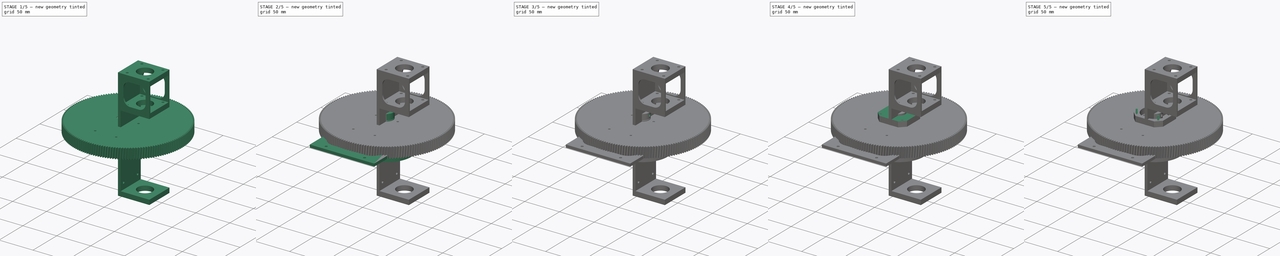
[diagram: build sequence overview — one tinted view per stage of 5, left to right]
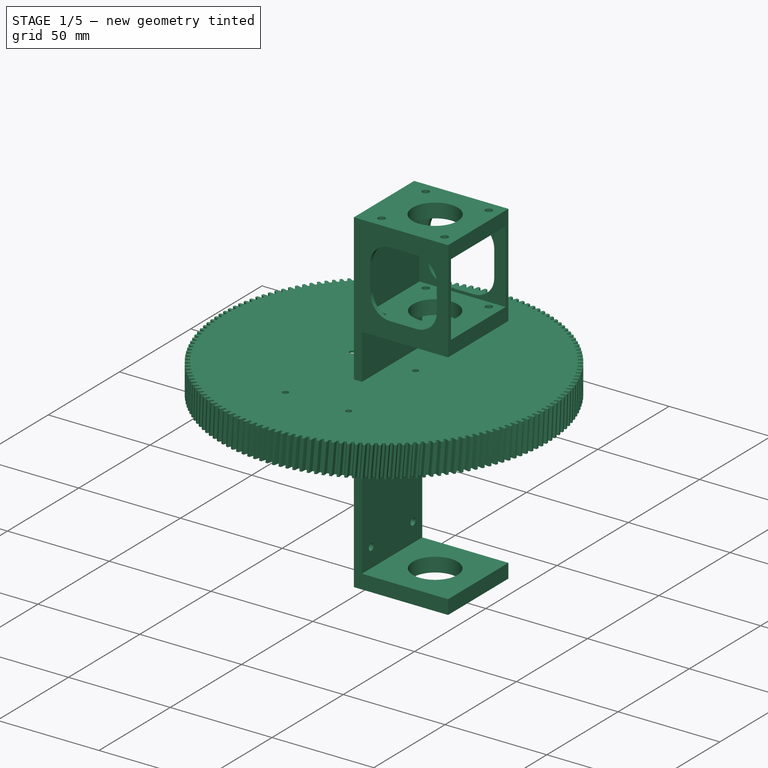
[diagram: stage 1 of 5 — iso view after this stage's code; geometry added in this stage tinted green]
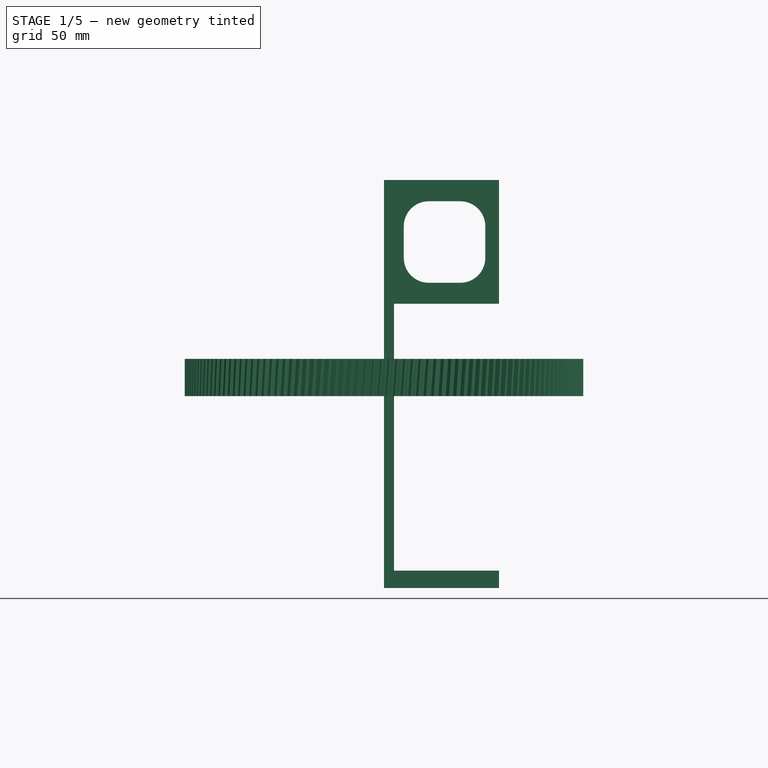
[diagram: stage 1 of 5 — front view after this stage's code; geometry added in this stage tinted green]
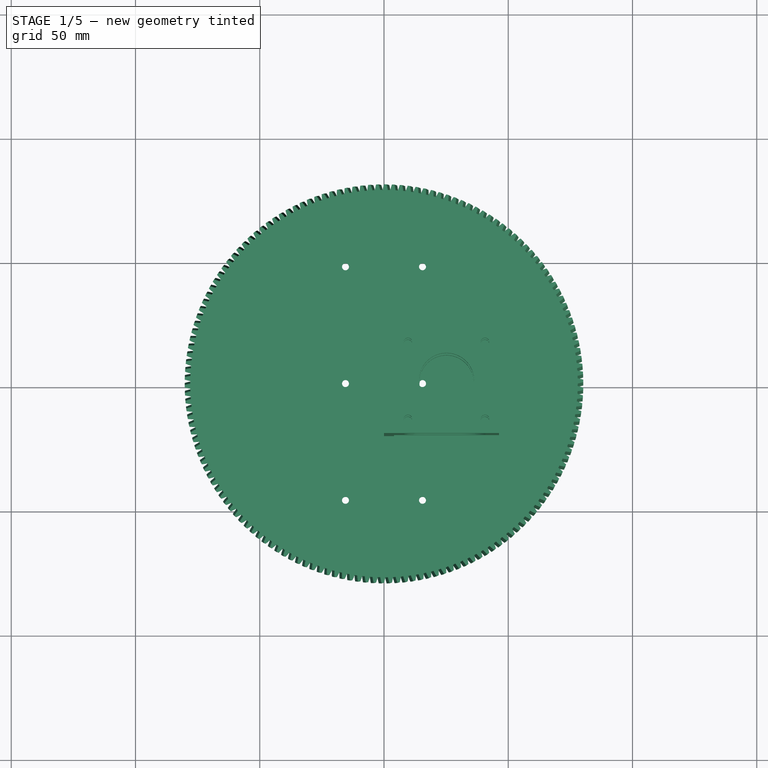
[diagram: stage 1 of 5 — top view after this stage's code; geometry added in this stage tinted green]
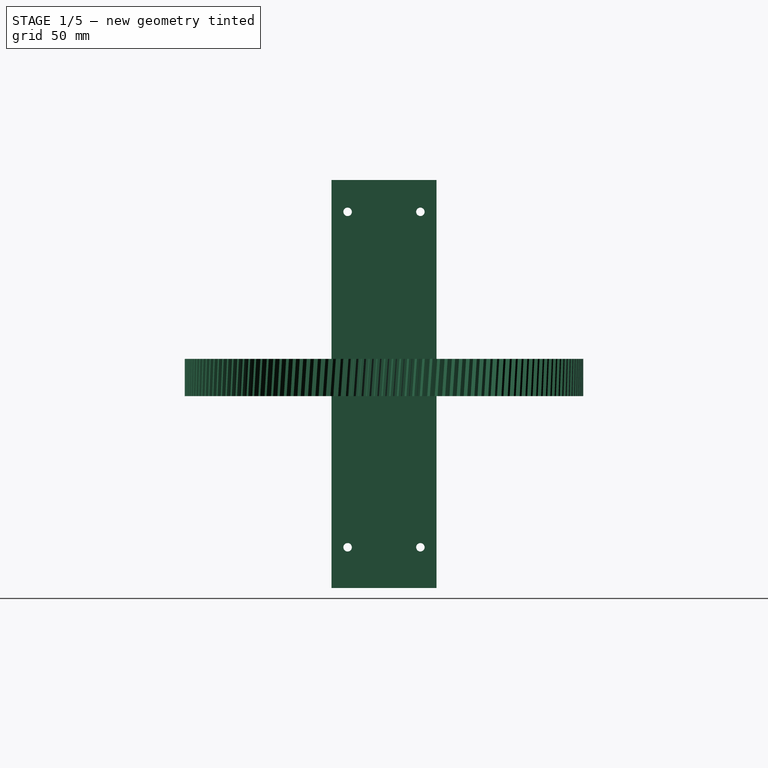
[diagram: stage 1 of 5 — right view after this stage's code; geometry added in this stage tinted green]
FCSTD DOCUMENT  (FreeCAD 0.19R21937 (Git))
Label: large_worm_gear
License: All rights reserved
LicenseURL: http://en.wikipedia.org/wiki/All_rights_reserved
objects: Sketcher::SketchObject×47, PartDesign::Pocket×24, PartDesign::Body×20, PartDesign::Pad×17, App::Part×10, PartDesign::Chamfer×8, Part::FeaturePython×6, PartDesign::FeatureBase×6, PartDesign::Revolution×4, PartDesign::Fillet×2, App::DocumentObjectGroup×2, Part::Feature×1, PartDesign::Draft×1, PartDesign::Hole×1, PartDesign::LinearPattern×1, Part::Helix×1, PartDesign::ShapeBinder×1, PartDesign::SubtractivePipe×1, PartDesign::Plane×1, PartDesign::PolarPattern×1
note: 201 computed .brp shape members not serialized (recipe doc carries the construction recipe); baked Part::Feature solids carry a one-line shape summary decoded from their .brp

FEATURE [PartDesign::Body] Body  label="worm"
  BaseFeature = -> WormGear
  Group = -> [BaseFeature,Sketch,Pocket]
  Origin = -> Origin
  Placement = pos=(68,20,-2) rot=(1,0,0;1.5708rad)
  Tip = -> Pocket
FEATURE [Part::FeaturePython] InvoluteGear  # WARN: FeaturePython — macro-defined, semantics opaque (R4)
  backlash = 0
  beta = 4.09
  clearance = 0.25
  double_helix = false
  dw = 158.403
  head = 0
  height = 15
  module = 1
  numpoints = 6
  pressure_angle = 14.5
  reversed_backlash = false
  shift = 0
  simple = false
  teeth = 158
  undercut = false
FEATURE [PartDesign::FeatureBase] BaseFeature001
  BaseFeature = -> InvoluteGear
FEATURE [Sketcher::SketchObject] Sketch001
  MapMode = 5
  Support = -> [XY_Plane001]
  sketch-geometry (1):
    g0: Circle CenterX=0 CenterY=0 CenterZ=0 NormalX=0 NormalY=0 NormalZ=1 AngleXU=0 Radius=54.8
  constraints (2):
    c: Coincident(g0,g-1)
    c: Radius(g0) = 54.8
FEATURE [PartDesign::Pocket] Pocket001
  BaseFeature = -> BaseFeature001
  Length = 14
  Length2 = 100
  Profile = -> Sketch001
  Reversed = true
  Type = 0
FEATURE [Sketcher::SketchObject] Sketch002
  MapMode = 5
  Placement = pos=(0,0,14) rot=(1,0,0;3.14159rad)
  Support = -> [Pocket001]
  sketch-geometry (2):
    g0: Circle CenterX=0 CenterY=0 CenterZ=0 NormalX=0 NormalY=0 NormalZ=1 AngleXU=0 Radius=55
    g1: Circle CenterX=0 CenterY=0 CenterZ=0 NormalX=0 NormalY=0 NormalZ=1 AngleXU=0 Radius=48
  constraints (4):
    c: Coincident(g0,g-1)
    c: Radius(g0) = 55
    c: Coincident(g1,g0)
    c: Radius(g1) = 48
FEATURE [PartDesign::Pad] Pad
  BaseFeature = -> Pocket001
  Length = 1
  Length2 = 100
  Profile = -> Sketch002
  Type = 0
FEATURE [PartDesign::Body] Body024  label="Clon4"
  BaseFeature = -> Body021
  Group = -> [Clone003]
  Origin = -> Origin029
  Placement = pos=(-1,0,0) rot=(0,0,1;1.5708rad)
  Tip = -> Clone003
FEATURE [App::Part] Part007  label="fastener"
  Group = -> [Body023,Body020,Body021,Body019,Body024]
  Origin = -> Origin036
FEATURE [App::Part] Part008  label="Beam-coupling-8mm-5mm"
  Group = -> [Part009,Part007]
  Origin = -> Origin037
  Placement = pos=(68,-73,-2) rot=(1,0,0;-1.5708rad)
FEATURE [Sketcher::SketchObject] Sketch029
  MapMode = 5
  Placement = pos=(0,0,0) rot=(0.57735,0.57735,0.57735;2.0944rad)
  Support = -> [YZ_Plane020]
  sketch-geometry (4):
    g0: LineSegment StartX=-21.15 StartY=-77.2061 StartZ=0 EndX=21.15 EndY=-77.2061 EndZ=0
    g1: LineSegment StartX=21.15 StartY=-77.2061 StartZ=0 EndX=21.15 EndY=87 EndZ=0
    g2: LineSegment StartX=21.15 StartY=87 StartZ=0 EndX=-21.15 EndY=87 EndZ=0
    g3: LineSegment StartX=-21.15 StartY=87 StartZ=0 EndX=-21.15 EndY=-77.2061 EndZ=0
  constraints (9):
    c: Coincident(g0,g1)
    c: Coincident(g1,g2)
    c: Coincident(g2,g3)
    c: Coincident(g3,g0)
    c: Horizontal(g0)
    c: Vertical(g1)
    c: Vertical(g3)
    c: DistanceX(g2,g2) = 42.3
    c: Symmetric(g2,g1,g-2)
FEATURE [PartDesign::Pad] Pad013
  Length = 4
  Length2 = 100
  Placement = pos=(0,0,0) rot=(0.57735,0.57735,0.57735;2.0944rad)
  Profile = -> Sketch029
  Type = 0
FEATURE [Sketcher::SketchObject] Sketch030
  ExternalGeometry = -> [Pad013]
  MapMode = 5
  Placement = pos=(4,-1.8e-15,1.3e-15) rot=(0.57735,0.57735,0.57735;2.0944rad)
  Support = -> [Pad013]
  sketch-geometry (12):
    g0: LineSegment StartX=-21.15 StartY=44.1784 StartZ=0 EndX=21.15 EndY=44.1784 EndZ=0
    g1: LineSegment StartX=21.15 StartY=44.1784 StartZ=0 EndX=21.15 EndY=37.1784 EndZ=0
    g2: LineSegment StartX=21.15 StartY=37.1784 StartZ=0 EndX=-21.15 EndY=37.1784 EndZ=0
    g3: LineSegment StartX=-21.15 StartY=37.1784 StartZ=0 EndX=-21.15 EndY=44.1784 EndZ=0
    g4: LineSegment StartX=-21.15 StartY=87 StartZ=0 EndX=21.15 EndY=87 EndZ=0
    g5: LineSegment StartX=21.15 StartY=87 StartZ=0 EndX=21.15 EndY=80 EndZ=0
    g6: LineSegment StartX=21.15 StartY=80 StartZ=0 EndX=-21.15 EndY=80 EndZ=0
    g7: LineSegment StartX=-21.15 StartY=80 StartZ=0 EndX=-21.15 EndY=87 EndZ=0
    g8: LineSegment StartX=-21.15 StartY=-70.2061 StartZ=0 EndX=21.15 EndY=-70.2061 EndZ=0
    g9: LineSegment StartX=21.15 StartY=-70.2061 StartZ=0 EndX=21.15 EndY=-77.2061 EndZ=0
    g10: LineSegment StartX=21.15 StartY=-77.2061 StartZ=0 EndX=-21.15 EndY=-77.2061 EndZ=0
    g11: LineSegment StartX=-21.15 StartY=-77.2061 StartZ=0 EndX=-21.15 EndY=-70.2061 EndZ=0
  constraints (31):
    c: Coincident(g0,g1)
    c: Coincident(g1,g2)
    c: Coincident(g2,g3)
    c: Coincident(g3,g0)
    c: Horizontal(g2)
    c: Vertical(g1)
    c: Vertical(g3)
    c: Coincident(g4,g5)
    c: Coincident(g5,g6)
    c: Coincident(g6,g7)
    c: Coincident(g7,g4)
    c: Horizontal(g6)
    c: Vertical(g5)
    c: Vertical(g7)
    c: Symmetric(g4,g4,g-2)
    c: Symmetric(g0,g0,g-2)
    c: DistanceY(g5,g5) = 7
    c: DistanceX(g0,g0) = 42.3
    c: DistanceY(g1,g1) = 7
    c: Coincident(g4,g-3)
    c: Coincident(g8,g9)
    c: Coincident(g9,g10)
    c: Coincident(g10,g11)
    c: Coincident(g11,g8)
    c: Horizontal(g8)
    c: Horizontal(g10)
    c: Vertical(g9)
    c: Vertical(g11)
    c: PointOnObject(g8,g-4)
    c: Coincident(g9,g-5)
    c: DistanceY(g9,g9) = 7
FEATURE [PartDesign::Pad] Pad014
  BaseFeature = -> Pad013
  Length = 42.3
  Length2 = 100
  Placement = pos=(0,0,0) rot=(0.57735,0.57735,0.57735;2.0944rad)
  Profile = -> Sketch030
  Type = 0
FEATURE [Sketcher::SketchObject] Sketch125
  MapMode = 5
  Placement = pos=(4,-2.7e-15,1.8e-15) rot=(0.57735,0.57735,0.57735;2.0944rad)
  sketch-geometry (8):
    g0: LineSegment StartX=-21.15 StartY=80 StartZ=0 EndX=-19.15 EndY=80 EndZ=0
    g1: LineSegment StartX=-19.15 StartY=80 StartZ=0 EndX=-19.15 EndY=44.1784 EndZ=0
    g2: LineSegment StartX=-19.15 StartY=44.1784 StartZ=0 EndX=-21.15 EndY=44.1784 EndZ=0
    g3: LineSegment StartX=-21.15 StartY=44.1784 StartZ=0 EndX=-21.15 EndY=80 EndZ=0
    g4: LineSegment StartX=21.15 StartY=80 StartZ=0 EndX=19.15 EndY=80 EndZ=0
    g5: LineSegment StartX=19.15 StartY=80 StartZ=0 EndX=19.15 EndY=44.1784 EndZ=0
    g6: LineSegment StartX=19.15 StartY=44.1784 StartZ=0 EndX=21.15 EndY=44.1784 EndZ=0
    g7: LineSegment StartX=21.15 StartY=44.1784 StartZ=0 EndX=21.15 EndY=80 EndZ=0
  constraints (18):
    c: Coincident(g0,g1)
    c: Coincident(g1,g2)
    c: Coincident(g2,g3)
    c: Coincident(g3,g0)
    c: Horizontal(g0)
    c: Horizontal(g2)
    c: Vertical(g1)
    c: Vertical(g3)
    c: Coincident(g4,g5)
    c: Coincident(g5,g6)
    c: Coincident(g6,g7)
    c: Coincident(g7,g4)
    c: Horizontal(g4)
    c: Horizontal(g6)
    c: Vertical(g5)
    c: Vertical(g7)
    c: Equal(g6,g2)
    c: DistanceX(g6,g6) = 2
FEATURE [PartDesign::Pad] Pad049
  BaseFeature = -> Pad014
  Length = 42.3
  Length2 = 100
  Placement = pos=(0,0,0) rot=(0.57735,0.57735,0.57735;2.0944rad)
  Profile = -> Sketch125
  Type = 0
FEATURE [Sketcher::SketchObject] Sketch126
  ExternalGeometry = -> [Pad049]
  MapMode = 5
  Placement = pos=(-3.3e-14,1.65e-14,37.1784) rot=(0.707107,0.707107,0;3.14159rad)
  Support = -> [Pad049]
  expr: Constraints[10] = (42.3 - 31) / 2
  sketch-geometry (9):
    g0: LineSegment [constr] StartX=-15.5 StartY=40.65 StartZ=0 EndX=15.5 EndY=40.65 EndZ=0
    g1: LineSegment [constr] StartX=15.5 StartY=40.65 StartZ=0 EndX=15.5 EndY=9.65 EndZ=0
    g2: LineSegment [constr] StartX=15.5 StartY=9.65 StartZ=0 EndX=-15.5 EndY=9.65 EndZ=0
    g3: LineSegment [constr] StartX=-15.5 StartY=9.65 StartZ=0 EndX=-15.5 EndY=40.65 EndZ=0
    g4: Circle CenterX=-15.5 CenterY=40.65 CenterZ=0 NormalX=0 NormalY=0 NormalZ=1 AngleXU=0 Radius=1.7
    g5: Circle CenterX=15.5 CenterY=40.65 CenterZ=0 NormalX=0 NormalY=0 NormalZ=1 AngleXU=0 Radius=1.7
    g6: Circle CenterX=15.5 CenterY=9.65 CenterZ=0 NormalX=0 NormalY=0 NormalZ=1 AngleXU=0 Radius=1.7
    g7: Circle CenterX=-15.5 CenterY=9.65 CenterZ=0 NormalX=0 NormalY=0 NormalZ=1 AngleXU=0 Radius=1.7
    g8: Circle CenterX=0 CenterY=25.15 CenterZ=0 NormalX=0 NormalY=0 NormalZ=1 AngleXU=0 Radius=10.9178
  constraints (21):
    c: Coincident(g0,g1)
    c: Coincident(g1,g2)
    c: Coincident(g2,g3)
    c: Coincident(g3,g0)
    c: Horizontal(g2)
    c: Vertical(g1)
    c: Vertical(g3)
    c: Symmetric(g0,g0,g-2)
    c: Equal(g1,g0)
    c: DistanceY(g1,g1) = 31
    c: DistanceY(g0,g-5) = 5.65
    c: Coincident(g4,g0)
    c: Coincident(g5,g0)
    c: Coincident(g6,g1)
    c: Coincident(g7,g2)
    c: Radius(g4) = 1.7
    c: Equal(g4,g5)
    c: Equal(g4,g6)
    c: Equal(g4,g7)
    c: PointOnObject(g8,g-2)
    c: DistanceY(g6,g8) = 15.5
FEATURE [PartDesign::Pocket] Pocket019
  BaseFeature = -> Pad049
  Length = 7
  Length2 = 100
  Placement = pos=(0,0,0) rot=(0.57735,0.57735,0.57735;2.0944rad)
  Profile = -> Sketch126
  Type = 0
FEATURE [Sketcher::SketchObject] Sketch127
  ExternalGeometry = -> [Sketch030,Pocket019]
  MapMode = 5
  Placement = pos=(-9.77e-14,4.44e-14,80) rot=(0.707107,0.707107,0;3.14159rad)
  Support = -> [Pocket019]
  expr: Constraints[10] = (42.3 - 31) / 2
  sketch-geometry (9):
    g0: LineSegment [constr] StartX=-15.5 StartY=40.65 StartZ=0 EndX=15.5 EndY=40.65 EndZ=0
    g1: LineSegment [constr] StartX=15.5 StartY=40.65 StartZ=0 EndX=15.5 EndY=9.65 EndZ=0
    g2: LineSegment [constr] StartX=15.5 StartY=9.65 StartZ=0 EndX=-15.5 EndY=9.65 EndZ=0
    g3: LineSegment [constr] StartX=-15.5 StartY=9.65 StartZ=0 EndX=-15.5 EndY=40.65 EndZ=0
    g4: Circle CenterX=-15.5 CenterY=40.65 CenterZ=0 NormalX=0 NormalY=0 NormalZ=1 AngleXU=0 Radius=1.7
    g5: Circle CenterX=15.5 CenterY=40.65 CenterZ=0 NormalX=0 NormalY=0 NormalZ=1 AngleXU=0 Radius=1.7
    g6: Circle CenterX=15.5 CenterY=9.65 CenterZ=0 NormalX=0 NormalY=0 NormalZ=1 AngleXU=0 Radius=1.7
    g7: Circle CenterX=-15.5 CenterY=9.65 CenterZ=0 NormalX=0 NormalY=0 NormalZ=1 AngleXU=0 Radius=1.7
    g8: Circle CenterX=0 CenterY=25.15 CenterZ=0 NormalX=0 NormalY=0 NormalZ=1 AngleXU=0 Radius=11.1
  constraints (22):
    c: Coincident(g0,g1)
    c: Coincident(g1,g2)
    c: Coincident(g2,g3)
    c: Coincident(g3,g0)
    c: Horizontal(g2)
    c: Vertical(g1)
    c: Vertical(g3)
    c: Symmetric(g0,g0,g-2)
    c: Equal(g0,g3)
    c: DistanceX(g0,g0) = 31
    c: DistanceY(g0,g-4) = 5.65
    c: Coincident(g4,g0)
    c: Coincident(g5,g0)
    c: Coincident(g6,g1)
    c: Coincident(g7,g2)
    c: Radius(g4) = 1.7
    c: Equal(g4,g5)
    c: Equal(g4,g6)
    c: Equal(g4,g7)
    c: PointOnObject(g8,g-2)
    c: Radius(g8) = 11.1
    c: DistanceY(g8,g5) = 15.5
FEATURE [PartDesign::Pocket] Pocket020
  BaseFeature = -> Pocket019
  Length = 7
  Length2 = 100
  Placement = pos=(0,0,0) rot=(0.57735,0.57735,0.57735;2.0944rad)
  Profile = -> Sketch127
  Type = 0
FEATURE [Sketcher::SketchObject] Sketch128
  MapMode = 5
  Placement = pos=(2.35e-14,21.15,-1.88e-14) rot=(0.57735,0.57735,0.57735;4.18879rad)
  Support = -> [Pocket020]
  sketch-geometry (8):
    g0: LineSegment StartX=55.6372 StartY=40.7495 StartZ=0 EndX=68.4175 EndY=40.7495 EndZ=0
    g1: LineSegment StartX=78.4175 StartY=30.7495 StartZ=0 EndX=78.4175 EndY=17.9692 EndZ=0
    g2: LineSegment StartX=68.4175 StartY=7.96918 StartZ=0 EndX=55.6372 EndY=7.96918 EndZ=0
    g3: LineSegment StartX=45.6372 StartY=17.9692 StartZ=0 EndX=45.6372 EndY=30.7495 EndZ=0
    g4: ArcOfCircle CenterX=55.6372 CenterY=30.7495 CenterZ=0 NormalX=0 NormalY=0 NormalZ=1 AngleXU=0 Radius=10 StartAngle=1.5708 EndAngle=3.14159
    g5: ArcOfCircle CenterX=68.4175 CenterY=30.7495 CenterZ=0 NormalX=0 NormalY=0 NormalZ=1 AngleXU=0 Radius=10 StartAngle=0 EndAngle=1.5708
    g6: ArcOfCircle CenterX=68.4175 CenterY=17.9692 CenterZ=0 NormalX=0 NormalY=0 NormalZ=1 AngleXU=0 Radius=10 StartAngle=4.71239 EndAngle=6.28319
    g7: ArcOfCircle CenterX=55.6372 CenterY=17.9692 CenterZ=0 NormalX=0 NormalY=0 NormalZ=1 AngleXU=0 Radius=10 StartAngle=3.14159 EndAngle=4.71239
  constraints (17):
    c: Horizontal(g0)
    c: Horizontal(g2)
    c: Vertical(g1)
    c: Vertical(g3)
    c: Tangent(g0,g4) = 1.5708
    c: Tangent(g3,g4) = 1.5708
    c: Tangent(g0,g5) = 1.5708
    c: Tangent(g1,g5) = 1.5708
    c: Tangent(g1,g6) = 1.5708
    c: Tangent(g2,g6) = 1.5708
    c: Tangent(g2,g7) = 1.5708
    c: Tangent(g3,g7) = 1.5708
    c: Equal(g4,g5)
    c: Equal(g0,g1)
    c: Equal(g1,g3)
    c: Equal(g3,g2)
    c: Radius(g4) = 10
FEATURE [PartDesign::Pocket] Pocket021
  BaseFeature = -> Pocket020
  Length = 45
  Length2 = 100
  Placement = pos=(0,0,0) rot=(0.57735,0.57735,0.57735;2.0944rad)
  Profile = -> Sketch128
  Type = 0
FEATURE [Sketcher::SketchObject] Sketch129
  ExternalGeometry = -> [Pocket021]
  MapMode = 5
  Placement = pos=(1.325e-13,-5.46e-14,-70.2061) rot=(0,0,-1;1.5708rad)
  Support = -> [Pocket021]
  expr: Constraints[2] = 42.3 / 2
  sketch-geometry (1):
    g0: Circle CenterX=0 CenterY=25.15 CenterZ=0 NormalX=0 NormalY=0 NormalZ=1 AngleXU=0 Radius=11
  constraints (3):
    c: PointOnObject(g0,g-2)
    c: Radius(g0) = 11
    c: DistanceY(g0,g-3) = 21.15
FEATURE [PartDesign::Pocket] Pocket022
  BaseFeature = -> Pocket021
  Length = 7
  Length2 = 100
  Placement = pos=(0,0,0) rot=(0.57735,0.57735,0.57735;2.0944rad)
  Profile = -> Sketch129
  Type = 0
FEATURE [PartDesign::Body] Body012  label="Azimuth base plate"
  Group = -> [Pad044,Sketch107,Sketch106,Pad043,Sketch105,Pad042,Sketch130,Pocket023]
  Origin = -> Origin022
  Placement = pos=(-18.5,10,19) rot=(1,0,0;0rad)
  Tip = -> Pocket023
FEATURE [Sketcher::SketchObject] Sketch133
  MapMode = 5
  Placement = pos=(4,-7.1e-15,4e-15) rot=(0.57735,0.57735,0.57735;2.0944rad)
  Support = -> [Pocket022]
  sketch-geometry (8):
    g0: LineSegment [constr] StartX=-14.642 StartY=74.1845 StartZ=0 EndX=14.642 EndY=74.1845 EndZ=0
    g1: LineSegment [constr] StartX=14.642 StartY=74.1845 StartZ=0 EndX=14.642 EndY=-60.8155 EndZ=0
    g2: LineSegment [constr] StartX=14.642 StartY=-60.8155 StartZ=0 EndX=-14.642 EndY=-60.8155 EndZ=0
    g3: LineSegment [constr] StartX=-14.642 StartY=-60.8155 StartZ=0 EndX=-14.642 EndY=74.1845 EndZ=0
    g4: Circle CenterX=-14.642 CenterY=74.1845 CenterZ=0 NormalX=0 NormalY=0 NormalZ=1 AngleXU=0 Radius=1.7
    g5: Circle CenterX=14.642 CenterY=74.1845 CenterZ=0 NormalX=0 NormalY=0 NormalZ=1 AngleXU=0 Radius=1.7
    g6: Circle CenterX=14.642 CenterY=-60.8155 CenterZ=0 NormalX=0 NormalY=0 NormalZ=1 AngleXU=0 Radius=1.7
    g7: Circle CenterX=-14.642 CenterY=-60.8155 CenterZ=0 NormalX=0 NormalY=0 NormalZ=1 AngleXU=0 Radius=1.7
  constraints (17):
    c: Coincident(g0,g1)
    c: Coincident(g1,g2)
    c: Coincident(g2,g3)
    c: Coincident(g3,g0)
    c: Horizontal(g2)
    c: Vertical(g1)
    c: Vertical(g3)
    c: DistanceY(g1,g0) = 135
    c: Coincident(g4,g0)
    c: Coincident(g5,g0)
    c: Coincident(g6,g1)
    c: Coincident(g7,g2)
    c: Symmetric(g5,g4,g-2)
    c: Radius(g7) = 1.7
    c: Equal(g7,g4)
    c: Equal(g7,g5)
    c: Equal(g7,g6)
FEATURE [PartDesign::Pocket] Pocket026
  BaseFeature = -> Pocket022
  Length = 5
  Length2 = 100
  Placement = pos=(0,0,0) rot=(0.57735,0.57735,0.57735;2.0944rad)
  Profile = -> Sketch133
  Type = 0
FEATURE [PartDesign::Body] Body025  label="base"
  Group = -> [Sketch029,Pad013,Sketch030,Pad014,Sketch125,Pad049,Sketch126,Pocket019,Sketch127,Pocket020,Sketch128,Pocket021,Sketch129,Pocket022,Sketch133,Pocket026]
  Origin = -> Origin020
  Placement = pos=(68,-1.5,23) rot=(0.57735,0.57735,-0.57735;2.0944rad)
  Tip = -> Pocket026
FEATURE [App::DocumentObjectGroup] Group  label="worm001"
  Group = -> [WormGear,Body,Body013,Body015,Body016,Part,Part008,Body025]
FEATURE [Sketcher::SketchObject] Sketch132
  MapMode = 5
  Placement = pos=(0,0,3.214e-13) rot=(1,0,0;3.14159rad)
  sketch-geometry (2):
    g0: Circle CenterX=0 CenterY=0 CenterZ=0 NormalX=0 NormalY=0 NormalZ=1 AngleXU=0 Radius=74.6199
    g1: Circle CenterX=0 CenterY=0 CenterZ=0 NormalX=0 NormalY=0 NormalZ=1 AngleXU=0 Radius=58.3586
  constraints (2):
    c: Coincident(g0,g-1)
    c: Coincident(g1,g0)
FEATURE [PartDesign::Pocket] Pocket025
  BaseFeature = -> Pad
  Length = 13
  Length2 = 100
  Profile = -> Sketch132
  Type = 0
FEATURE [Sketcher::SketchObject] Sketch134
  MapMode = 5
  Placement = pos=(-2.2419e-08,-3.03625e-10,15) rot=(0,0,1;0rad)
  Support = -> [Pocket025]
  sketch-geometry (10):
    g0: LineSegment [constr] StartX=-15.5 StartY=47 StartZ=0 EndX=15.5 EndY=47 EndZ=0
    g1: LineSegment [constr] StartX=15.5 StartY=47 StartZ=0 EndX=15.5 EndY=-47 EndZ=0
    g2: LineSegment [constr] StartX=15.5 StartY=-47 StartZ=0 EndX=-15.5 EndY=-47 EndZ=0
    g3: LineSegment [constr] StartX=-15.5 StartY=-47 StartZ=0 EndX=-15.5 EndY=47 EndZ=0
    g4: Circle CenterX=-15.5 CenterY=47 CenterZ=0 NormalX=0 NormalY=0 NormalZ=1 AngleXU=0 Radius=1.4
    g5: Circle CenterX=15.5 CenterY=47 CenterZ=0 NormalX=0 NormalY=0 NormalZ=1 AngleXU=0 Radius=1.4
    g6: Circle CenterX=15.5 CenterY=0 CenterZ=0 NormalX=0 NormalY=0 NormalZ=1 AngleXU=0 Radius=1.4
    g7: Circle CenterX=-15.5 CenterY=0 CenterZ=0 NormalX=0 NormalY=0 NormalZ=1 AngleXU=0 Radius=1.4
    g8: Circle CenterX=-15.5 CenterY=-47 CenterZ=0 NormalX=0 NormalY=0 NormalZ=1 AngleXU=0 Radius=1.4
    g9: Circle CenterX=15.5 CenterY=-47 CenterZ=0 NormalX=0 NormalY=0 NormalZ=1 AngleXU=0 Radius=1.4
  constraints (25):
    c: Coincident(g0,g1)
    c: Coincident(g1,g2)
    c: Coincident(g2,g3)
    c: Coincident(g3,g0)
    c: Horizontal(g0)
    c: Horizontal(g2)
    c: Vertical(g1)
    c: Vertical(g3)
    c: Symmetric(g0,g2,g-1)
    c: DistanceY(g1,g1) = 94
    c: Coincident(g4,g0)
    c: Coincident(g5,g0)
    c: PointOnObject(g6,g1)
    c: PointOnObject(g7,g3)
    c: Coincident(g8,g2)
    c: Coincident(g9,g1)
    c: Radius(g5) = 1.4
    c: Equal(g5,g4)
    c: Equal(g5,g7)
    c: Equal(g5,g6)
    c: Equal(g5,g9)
    c: Equal(g5,g8)
    c: DistanceX(g0,g0) = 31
    c: PointOnObject(g6,g-1)
    c: PointOnObject(g7,g-1)
FEATURE [PartDesign::Pocket] Pocket027
  BaseFeature = -> Pocket025
  Length = 5
  Length2 = 100
  Profile = -> Sketch134
  Type = 0
FEATURE [PartDesign::Body] Body001  label="worm_gear"
  BaseFeature = -> InvoluteGear
  Group = -> [BaseFeature001,Sketch001,Pocket001,Sketch002,Pad,Sketch132,Pocket025,Sketch134,Pocket027]
  Origin = -> Origin001
  Placement = pos=(-18.34,9.36572,5.5) rot=(0.999048,0.043619,0;3.14159rad)
  Tip = -> Pocket027
FEATURE [App::DocumentObjectGroup] Group001  label="worm gear"
  Group = -> [InvoluteGear,Body001,Solid,Body012]
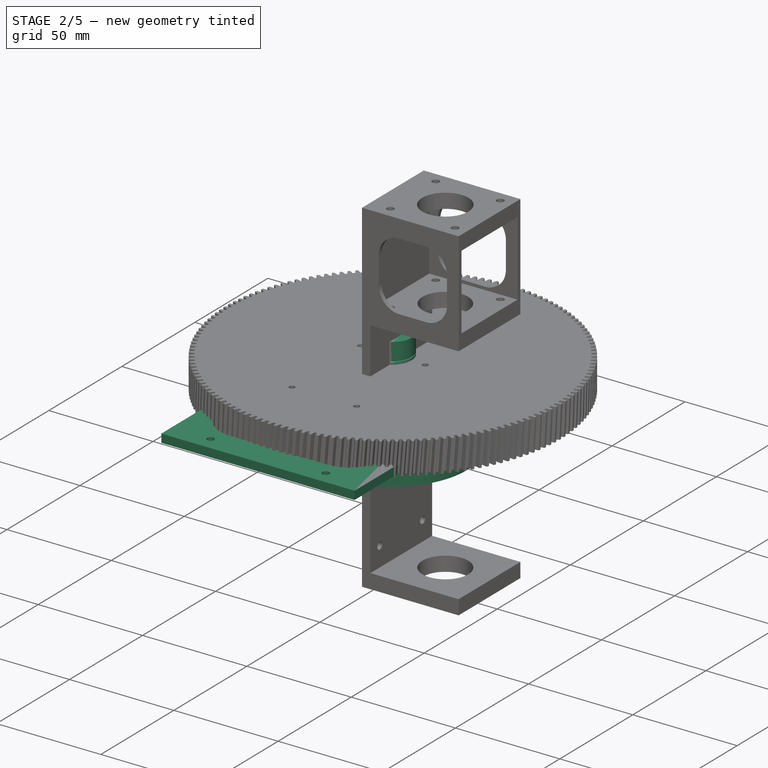
[diagram: stage 2 of 5 — iso view after this stage's code; geometry added in this stage tinted green]
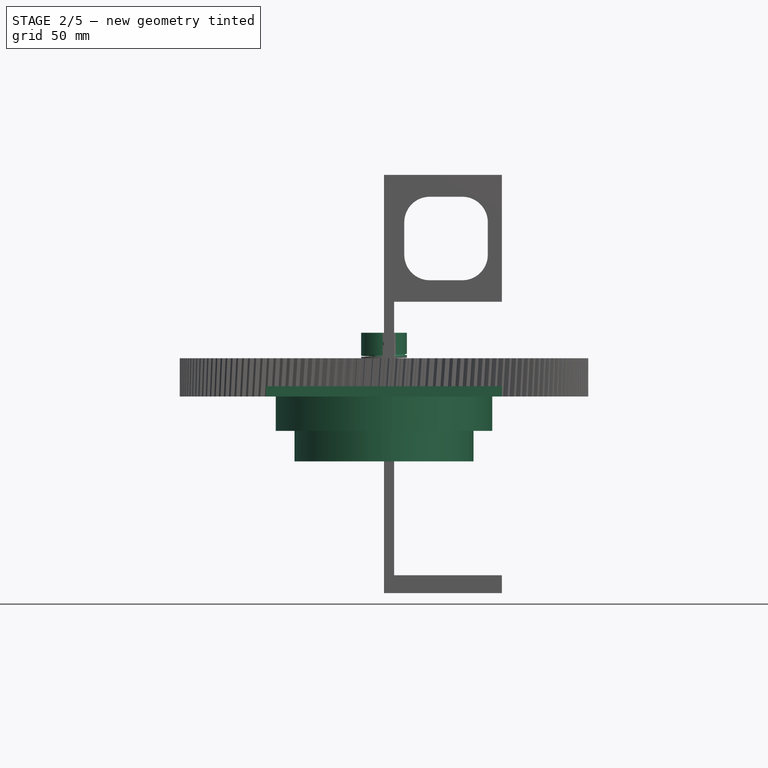
[diagram: stage 2 of 5 — front view after this stage's code; geometry added in this stage tinted green]
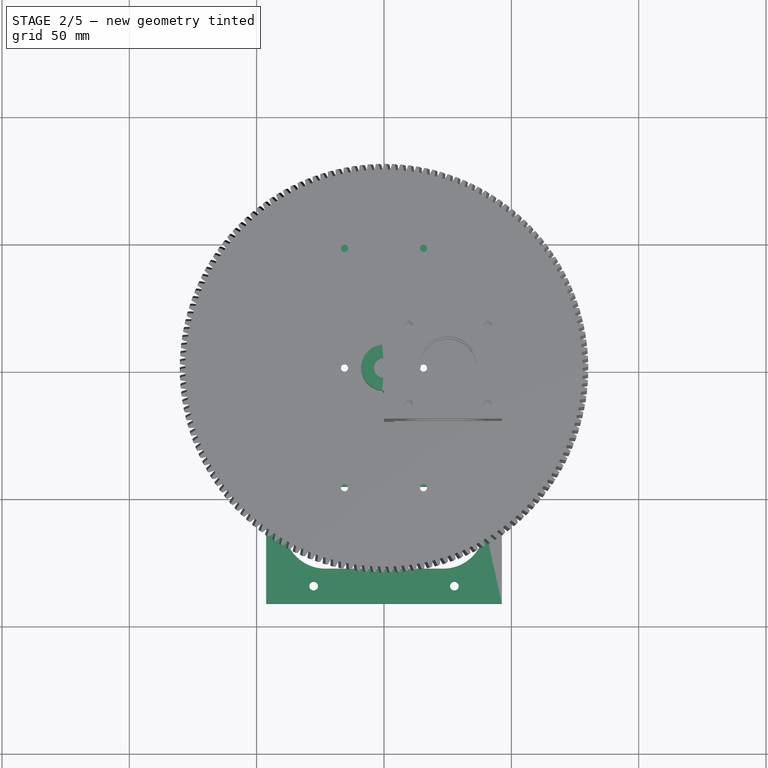
[diagram: stage 2 of 5 — top view after this stage's code; geometry added in this stage tinted green]
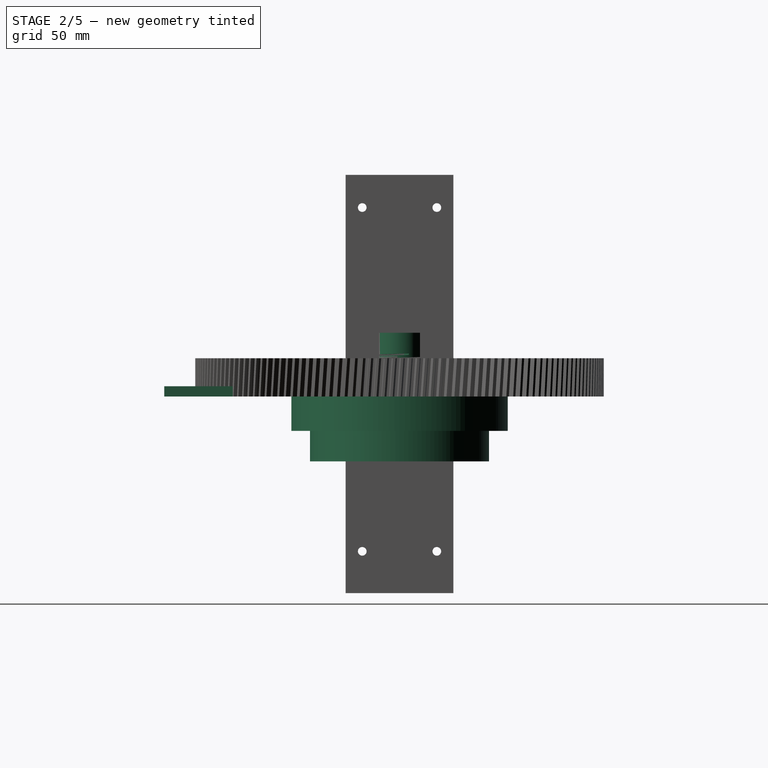
[diagram: stage 2 of 5 — right view after this stage's code; geometry added in this stage tinted green]
FEATURE [Part::Feature] Solid  label="bearing_16014_0"
  Placement = pos=(-18.5,9.5,5.5) rot=(0,1,0;1.5708rad)
  shape: bbox 119.1 x 119.1 x 13 mm, 32 faces (baked)
FEATURE [Sketcher::SketchObject] Sketch107
  MapMode = 5
  sketch-geometry (16):
    g0: LineSegment StartX=-46.3068 StartY=57.6019 StartZ=0 EndX=46.3068 EndY=57.6019 EndZ=0
    g1: LineSegment StartX=46.3068 StartY=57.6019 StartZ=0 EndX=46.3068 EndY=-92.3981 EndZ=0
    g2: LineSegment StartX=46.3068 StartY=-92.3981 StartZ=0 EndX=-46.3068 EndY=-92.3981 EndZ=0
    g3: LineSegment StartX=-46.3068 StartY=-92.3981 StartZ=0 EndX=-46.3068 EndY=57.6019 EndZ=0
    g4: LineSegment [constr] StartX=-27.6318 StartY=49.5634 StartZ=0 EndX=27.6318 EndY=49.5634 EndZ=0
    g5: LineSegment [constr] StartX=27.6318 StartY=49.5634 StartZ=0 EndX=27.6318 EndY=-85.4366 EndZ=0
    g6: LineSegment [constr] StartX=27.6318 StartY=-85.4366 StartZ=0 EndX=-27.6318 EndY=-85.4366 EndZ=0
    g7: LineSegment [constr] StartX=-27.6318 StartY=-85.4366 StartZ=0 EndX=-27.6318 EndY=49.5634 EndZ=0
    g8: Circle CenterX=-27.6318 CenterY=49.5634 CenterZ=0 NormalX=0 NormalY=0 NormalZ=1 AngleXU=0 Radius=1.7
    g9: Circle CenterX=27.6318 CenterY=49.5634 CenterZ=0 NormalX=0 NormalY=0 NormalZ=1 AngleXU=0 Radius=1.7
    g10: Circle CenterX=27.6318 CenterY=-85.4366 CenterZ=0 NormalX=0 NormalY=0 NormalZ=1 AngleXU=0 Radius=1.7
    g11: Circle CenterX=-27.6318 CenterY=-85.4366 CenterZ=0 NormalX=0 NormalY=0 NormalZ=1 AngleXU=0 Radius=1.7
    g12: ArcOfCircle CenterX=-23.0708 CenterY=-62.519 CenterZ=0 NormalX=0 NormalY=0 NormalZ=1 AngleXU=0 Radius=16.0582 StartAngle=1.5708 EndAngle=4.71239
    g13: ArcOfCircle CenterX=23.3178 CenterY=-62.519 CenterZ=0 NormalX=0 NormalY=0 NormalZ=1 AngleXU=0 Radius=16.0582 StartAngle=4.71239 EndAngle=7.85398
    g14: LineSegment StartX=-23.0708 StartY=-78.5772 StartZ=0 EndX=23.3178 EndY=-78.5772 EndZ=0
    g15: LineSegment StartX=-23.0708 StartY=-46.4608 StartZ=0 EndX=23.3178 EndY=-46.4608 EndZ=0
  constraints (32):
    c: Coincident(g3,g2)
    c: Coincident(g2,g1)
    c: Coincident(g0,g3)
    c: Coincident(g1,g0)
    c: Equal(g3,g1)
    c: Symmetric(g0,g0,g-2)
    c: Vertical(g1)
    c: Vertical(g3)
    c: DistanceY(g1,g1) = 150
    c: Coincident(g4,g5)
    c: Coincident(g5,g6)
    c: Coincident(g6,g7)
    c: Coincident(g7,g4)
    c: Horizontal(g6)
    c: Vertical(g5)
    c: Vertical(g7)
    c: Symmetric(g4,g4,g-2)
    c: DistanceY(g5,g5) = 135
    c: Coincident(g8,g4)
    c: Coincident(g9,g4)
    c: Coincident(g10,g5)
    c: Coincident(g11,g6)
    c: Radius(g8) = 1.7
    c: Equal(g8,g9)
    c: Equal(g8,g10)
    c: Equal(g8,g11)
    c: Tangent(g12,g15)
    c: Tangent(g12,g14)
    c: Tangent(g14,g13)
    c: Tangent(g15,g13)
    c: Horizontal(g14)
    c: Equal(g12,g13)
FEATURE [PartDesign::Pad] Pad044
  AllowMultiFace = false
  Length = 4
  Length2 = 100
  Profile = -> Sketch107
  Type = 0
FEATURE [Sketcher::SketchObject] Sketch106
  ExternalGeometry = -> [Pad044]
  MapMode = 5
  Placement = pos=(0,0,0) rot=(1,0,0;3.14159rad)
  Support = -> [Pad044]
  sketch-geometry (1):
    g0: Circle CenterX=0 CenterY=0 CenterZ=0 NormalX=0 NormalY=0 NormalZ=1 AngleXU=0 Radius=42.5
  constraints (2):
    c: Radius(g0) = 42.5
    c: Coincident(g0,g-1)
FEATURE [PartDesign::Pad] Pad043
  BaseFeature = -> Pad044
  Length = 13.5
  Length2 = 100
  Profile = -> Sketch106
  Type = 0
FEATURE [Sketcher::SketchObject] Sketch105
  MapMode = 5
  Placement = pos=(0,0,-13.5) rot=(1,0,0;3.14159rad)
  Support = -> [Pad043]
  sketch-geometry (2):
    g0: Circle CenterX=0 CenterY=0 CenterZ=0 NormalX=0 NormalY=0 NormalZ=1 AngleXU=0 Radius=35.15
    g1: Circle CenterX=0 CenterY=0 CenterZ=0 NormalX=0 NormalY=0 NormalZ=1 AngleXU=0 Radius=31.5
  constraints (4):
    c: Coincident(g1,g0)
    c: Radius(g0) = 35.15
    c: Radius(g1) = 31.5
    c: Coincident(g0,g-1)
FEATURE [PartDesign::Pad] Pad042
  BaseFeature = -> Pad043
  Length = 12
  Length2 = 100
  Profile = -> Sketch105
  Type = 0
FEATURE [PartDesign::Body] Body006  label="pin"
  Group = -> [Sketch018,Pad007,Sketch019,Pad008,LinearPattern]
  Origin = -> Origin013
  Placement = pos=(0,0,2) rot=(0,0,1;0rad)
  Tip = -> LinearPattern
FEATURE [App::Part] Part006  label="Conector"
  Group = -> [Body005,Body006]
  Origin = -> Origin011
  Placement = pos=(17,0,4) rot=(0,0,1;0rad)
FEATURE [App::Part] Part  label="Nema 17"
  Group = -> [Part001,Part002,Part003,Part004,Part005,Part006]
  Origin = -> Origin027
  Placement = pos=(68,-129,-2) rot=(1,0,0;-1.5708rad)
FEATURE [Sketcher::SketchObject] Sketch119
  MapMode = 5
  Placement = pos=(0,0,0) rot=(1,0,0;1.5708rad)
  Support = -> [XZ_Plane035]
  sketch-geometry (4):
    g0: LineSegment StartX=0 StartY=0 StartZ=0 EndX=-2 EndY=0 EndZ=0
    g1: LineSegment StartX=-2 StartY=0 StartZ=0 EndX=-2 EndY=6 EndZ=0
    g2: LineSegment StartX=-2 StartY=6 StartZ=0 EndX=0 EndY=6 EndZ=0
    g3: LineSegment StartX=0 StartY=6 StartZ=0 EndX=0 EndY=0 EndZ=0
  constraints (11):
    c: Coincident(g0,g1)
    c: Coincident(g1,g2)
    c: Coincident(g2,g3)
    c: Coincident(g3,g0)
    c: Horizontal(g0)
    c: Horizontal(g2)
    c: Vertical(g1)
    c: Vertical(g3)
    c: Coincident(g0,g-1)
    c: DistanceX(g2,g2) = 2
    c: DistanceY(g1,g1) = 6
FEATURE [Sketcher::SketchObject] Sketch120
  MapMode = 5
  Placement = pos=(0,0,0) rot=(1,0,0;1.5708rad)
  Support = -> [XZ_Plane033]
  sketch-geometry (4):
    g0: LineSegment StartX=0.227639 StartY=16.7629 StartZ=0 EndX=11.1677 EndY=16.7629 EndZ=0
    g1: LineSegment StartX=11.1677 StartY=16.7629 StartZ=0 EndX=11.1677 EndY=16.2629 EndZ=0
    g2: LineSegment StartX=11.1677 StartY=16.2629 StartZ=0 EndX=0.227639 EndY=16.2629 EndZ=0
    g3: LineSegment StartX=0.227639 StartY=16.2629 StartZ=0 EndX=0.227639 EndY=16.7629 EndZ=0
  constraints (9):
    c: Coincident(g0,g1)
    c: Coincident(g1,g2)
    c: Coincident(g2,g3)
    c: Coincident(g3,g0)
    c: Horizontal(g0)
    c: Horizontal(g2)
    c: Vertical(g1)
    c: Vertical(g3)
    c: DistanceY(g1,g1) = 0.5
FEATURE [Sketcher::SketchObject] Sketch121
  MapMode = 5
  Placement = pos=(0,0,0) rot=(1,0,0;1.5708rad)
  Support = -> [XZ_Plane033]
  sketch-geometry (6):
    g0: LineSegment StartX=-9 StartY=25 StartZ=0 EndX=-4 EndY=25 EndZ=0
    g1: LineSegment StartX=-2.5 StartY=8 StartZ=0 EndX=-2.5 EndY=0 EndZ=0
    g2: LineSegment StartX=-2.5 StartY=0 StartZ=0 EndX=-9 EndY=0 EndZ=0
    g3: LineSegment StartX=-9 StartY=0 StartZ=0 EndX=-9 EndY=25 EndZ=0
    g4: LineSegment StartX=-2.5 StartY=8 StartZ=0 EndX=-4 EndY=8 EndZ=0
    g5: LineSegment StartX=-4 StartY=8 StartZ=0 EndX=-4 EndY=25 EndZ=0
  constraints (18):
    c: Coincident(g1,g2)
    c: Coincident(g2,g3)
    c: Coincident(g3,g0)
    c: Horizontal(g0)
    c: Horizontal(g2)
    c: Vertical(g1)
    c: Vertical(g3)
    c: PointOnObject(g1,g-1)
    c: DistanceX(g1,g-1) = 2.5
    c: DistanceX(g2,g-1) = 9
    c: DistanceY(g3,g3) = 25
    c: Horizontal(g4)
    c: Coincident(g5,g4)
    c: Vertical(g5)
    c: Coincident(g1,g4)
    c: Coincident(g0,g5)
    c: DistanceX(g0,g-1) = 4
    c: DistanceY(g5,g5) = 17
FEATURE [Part::Helix] Helix001  label="Hélice001"
  Angle = 0
  AttacherType = Attacher::AttachEngine3D
  Height = 9.1
  LocalCoord = 0
  Pitch = 1.5
  Placement = pos=(0,0,7.35) rot=(0,0,1;0rad)
  Radius = 10
  Style = 1
FEATURE [PartDesign::ShapeBinder] ShapeBinder001
  Placement = pos=(0,0,7.35) rot=(0,0,1;0rad)
  Support = -> [Helix001]
  TraceSupport = false
FEATURE [PartDesign::Revolution] Revolution002
  AllowMultiFace = false
  Angle = 360
  Axis = (0,2e-16,1)
  Base = (0,0,0)
  Placement = pos=(0,0,0) rot=(1,0,0;1.5708rad)
  Profile = -> Sketch119
  ReferenceAxis = -> Sketch119 [V_Axis]
  Refine = true
FEATURE [Sketcher::SketchObject] Sketch124
  MapMode = 5
  Placement = pos=(0,4e-15,6) rot=(0,0,1;3.14159rad)
  Support = -> [Revolution002]
  sketch-geometry (7):
    g0: LineSegment StartX=-0.625 StartY=-1.08253 StartZ=0 EndX=0.625 EndY=-1.08253 EndZ=0
    g1: LineSegment StartX=0.625 StartY=-1.08253 StartZ=0 EndX=1.25 EndY=-1.44e-14 EndZ=0
    g2: LineSegment StartX=1.25 StartY=-1.44e-14 StartZ=0 EndX=0.625 EndY=1.08253 EndZ=0
    g3: LineSegment StartX=0.625 StartY=1.08253 StartZ=0 EndX=-0.625 EndY=1.08253 EndZ=0
    g4: LineSegment StartX=-0.625 StartY=1.08253 StartZ=0 EndX=-1.25 EndY=-1.44e-14 EndZ=0
    g5: LineSegment StartX=-1.25 StartY=-1.44e-14 StartZ=0 EndX=-0.625 EndY=-1.08253 EndZ=0
    g6: Circle [constr] CenterX=0 CenterY=0 CenterZ=0 NormalX=0 NormalY=0 NormalZ=1 AngleXU=0 Radius=1.25
  constraints (16):
    c: Coincident(g0,g1)
    c: Coincident(g1,g2)
    c: Coincident(g2,g3)
    c: Coincident(g3,g4)
    c: Coincident(g4,g5)
    c: Coincident(g5,g0)
    c: Equal(g0, g1-g5) x5
    c: PointOnObject(g0,g6)
    c: PointOnObject(g1,g6)
    c: PointOnObject(g2,g6)
    c: PointOnObject(g3,g6)
    c: PointOnObject(g4,g6)
    c: PointOnObject(g5,g6)
    c: Coincident(g6,g-1)
    c: Horizontal(g0)
    c: DistanceX(g4,g1) = 2.5
FEATURE [PartDesign::Pocket] Pocket017
  AllowMultiFace = false
  BaseFeature = -> Revolution002
  Length = 2
  Length2 = 100
  Placement = pos=(0,0,0) rot=(1,0,0;1.5708rad)
  Profile = -> Sketch124
  Refine = true
  Type = 0
FEATURE [PartDesign::Revolution] Revolution003
  AllowMultiFace = false
  Angle = 360
  Axis = (0,-2e-16,1)
  Base = (0,0,0)
  Placement = pos=(0,0,0) rot=(1,0,0;1.5708rad)
  Profile = -> Sketch121
  ReferenceAxis = -> Sketch121 [V_Axis]
  Refine = true
FEATURE [PartDesign::SubtractivePipe] SubtractivePipe
  AllowMultiFace = false
  AuxilleryCurvelinear = true
  AuxillerySpineTangent = false
  BaseFeature = -> Revolution003
  Binormal = (0,0,0)
  Mode = 2
  Placement = pos=(0,0,0) rot=(1,0,0;1.5708rad)
  Profile = -> Sketch120
  Refine = true
  Spine = -> ShapeBinder001
  SpineTangent = false
  Transformation = 0
  Transition = 0
FEATURE [Sketcher::SketchObject] Sketch122
  ExternalGeometry = -> [SubtractivePipe]
  MapMode = 5
  Placement = pos=(0,0,0) rot=(1,0,0;1.5708rad)
  Support = -> [XZ_Plane033]
  sketch-geometry (4):
    g0: Circle CenterX=0 CenterY=4 CenterZ=0 NormalX=0 NormalY=0 NormalZ=1 AngleXU=0 Radius=2
    g1: Circle [constr] CenterX=0 CenterY=21 CenterZ=0 NormalX=0 NormalY=0 NormalZ=1 AngleXU=0 Radius=2
    g2: LineSegment [constr] StartX=0 StartY=4 StartZ=0 EndX=0 EndY=0 EndZ=0
    g3: LineSegment [constr] StartX=0 StartY=21 StartZ=0 EndX=0 EndY=25 EndZ=0
  constraints (9):
    c: PointOnObject(g0,g-2)
    c: PointOnObject(g1,g-2)
    c: Radius(g1) = 2
    c: Equal(g0,g1)
    c: Coincident(g2,g0)
    c: Coincident(g2,g-1)
    c: Coincident(g3,g1)
    c: Vertical(g3)
    c: Equal(g3,g2)
FEATURE [PartDesign::Pocket] Pocket018
  AllowMultiFace = false
  BaseFeature = -> SubtractivePipe
  Length = 10
  Length2 = 100
  Placement = pos=(0,0,0) rot=(1,0,0;1.5708rad)
  Profile = -> Sketch122
  Refine = true
  Reversed = true
  Type = 0
FEATURE [PartDesign::Plane] DatumPlane
  AttachmentOffset = pos=(0,0,0) rot=(0,1,0;0.174533rad)
  Length = 68.686
  MapMode = 5
  Placement = pos=(0,0,0) rot=(0.992433,0.086827,0.086827;1.57839rad)
  ResizeMode = 0
  Support = -> [XZ_Plane033]
  Width = 60.7632
FEATURE [Sketcher::SketchObject] Sketch123
  ExternalGeometry = -> [Pocket018]
  MapMode = 5
  Placement = pos=(0,0,0) rot=(0.992433,0.086827,0.086827;1.57839rad)
  Support = -> [DatumPlane]
  sketch-geometry (1):
    g0: Circle CenterX=0 CenterY=21 CenterZ=0 NormalX=0 NormalY=0 NormalZ=1 AngleXU=0 Radius=2
  constraints (3):
    c: PointOnObject(g0,g-2)
    c: Radius(g0) = 2
    c: DistanceY(g0,g-3) = 4
FEATURE [PartDesign::Pocket] Pocket016
  AllowMultiFace = false
  BaseFeature = -> Pocket018
  Length = 10
  Length2 = 100
  Placement = pos=(0,0,0) rot=(1,0,0;1.5708rad)
  Profile = -> Sketch123
  Refine = true
  Reversed = true
  Type = 0
FEATURE [PartDesign::Body] Body022  label="Beam coupling"
  Group = -> [Sketch121,Revolution003,ShapeBinder001,Sketch120,SubtractivePipe,Sketch122,Pocket018,DatumPlane,Sketch123,Pocket016,PolarPattern]
  Origin = -> Origin033
  Tip = -> PolarPattern
FEATURE [App::Part] Part009  label="Beam coupling "
  Group = -> [Body022,Helix001]
  Origin = -> Origin035
FEATURE [PartDesign::Chamfer] Chamfer006
  Angle = 45
  Base = -> Pocket017 [Edge2]
  BaseFeature = -> Pocket017
  ChamferType = 0
  FlipDirection = false
  Placement = pos=(0,0,0) rot=(1,0,0;1.5708rad)
  Size = 0.35
  Size2 = 1
  SupportTransform = false
FEATURE [PartDesign::Chamfer] Chamfer007
  Angle = 45
  Base = -> Chamfer006 [Edge3]
  BaseFeature = -> Chamfer006
  ChamferType = 0
  FlipDirection = false
  Placement = pos=(0,0,0) rot=(1,0,0;1.5708rad)
  Size = 0.75
  Size2 = 1
  SupportTransform = false
FEATURE [PartDesign::Body] Body023  label="Set Screw"
  Group = -> [Sketch119,Revolution002,Sketch124,Pocket017,Chamfer006,Chamfer007]
  Origin = -> Origin031
  Tip = -> Chamfer007
FEATURE [PartDesign::FeatureBase] Clone
  BaseFeature = -> Body023
FEATURE [PartDesign::FeatureBase] Clone001
  BaseFeature = -> Body020
  Placement = pos=(0,-4,4) rot=(1,0,0;1.5708rad)
FEATURE [PartDesign::Body] Body019  label="Clon3"
  BaseFeature = -> Body020
  Group = -> [Clone002]
  Origin = -> Origin030
  Placement = pos=(-1,0,0) rot=(0,0,1;1.5708rad)
  Tip = -> Clone002
FEATURE [PartDesign::Body] Body021  label="Clon2"
  BaseFeature = -> Body020
  Group = -> [Clone001]
  Origin = -> Origin034
  Placement = pos=(-0.173648,0.984808,17) rot=(0,0,1;0.174533rad)
  Tip = -> Clone001
FEATURE [PartDesign::FeatureBase] Clone003
  BaseFeature = -> Body021
  Placement = pos=(0,0,17) rot=(0,0,1;0.174533rad)
FEATURE [Sketcher::SketchObject] Sketch130
  MapMode = 5
  Placement = pos=(0,0,-13.5) rot=(1,0,0;3.14159rad)
  Support = -> [Pad042]
  sketch-geometry (1):
    g0: Circle CenterX=0 CenterY=0 CenterZ=0 NormalX=0 NormalY=0 NormalZ=1 AngleXU=0 Radius=31.5
  constraints (2):
    c: Coincident(g0,g-1)
    c: Radius(g0) = 31.5
FEATURE [PartDesign::Pocket] Pocket023
  BaseFeature = -> Pad042
  Length = 20
  Length2 = 100
  Profile = -> Sketch130
  Type = 0
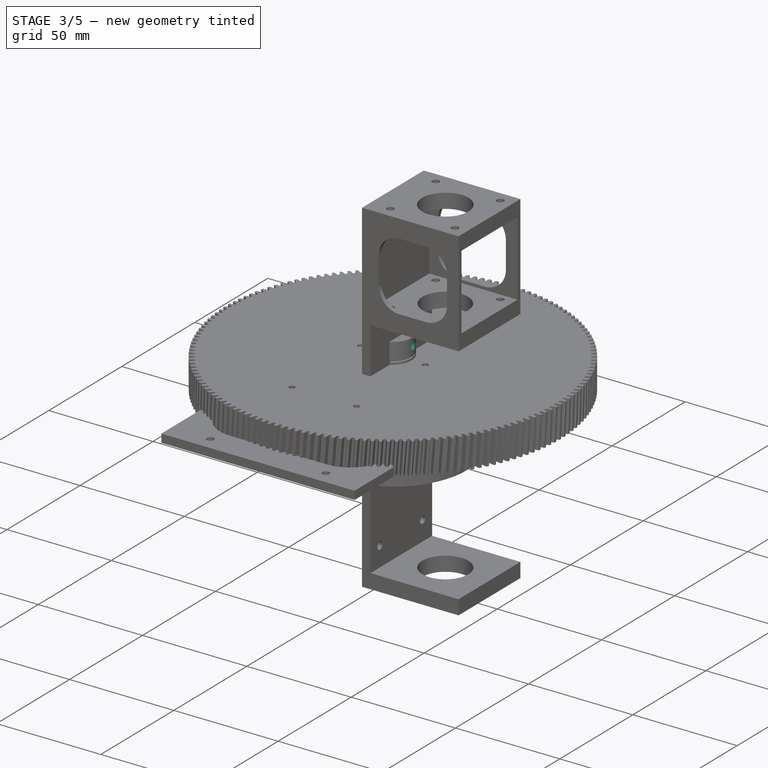
[diagram: stage 3 of 5 — iso view after this stage's code; geometry added in this stage tinted green]
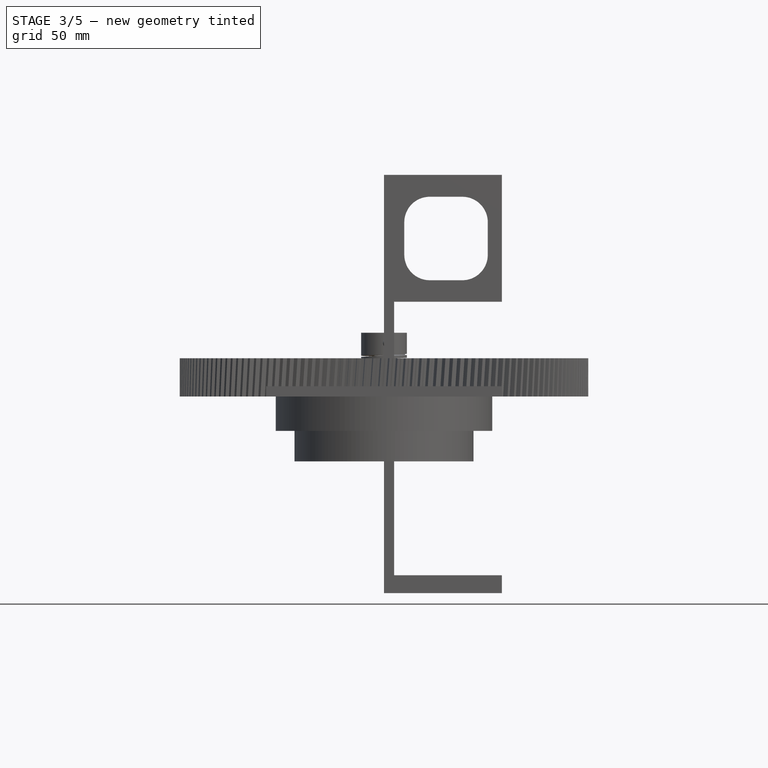
[diagram: stage 3 of 5 — front view after this stage's code; geometry added in this stage tinted green]
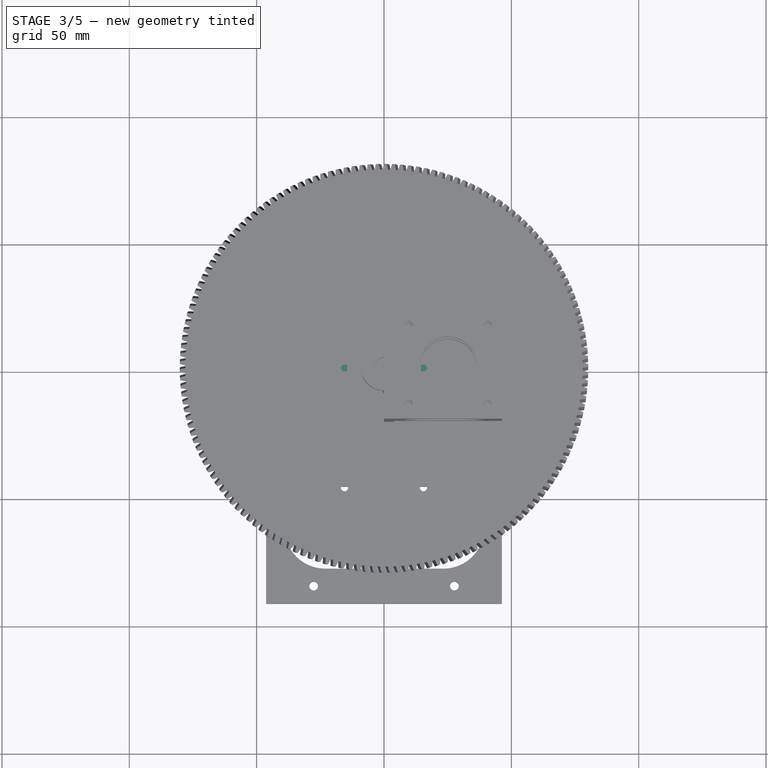
[diagram: stage 3 of 5 — top view after this stage's code; geometry added in this stage tinted green]
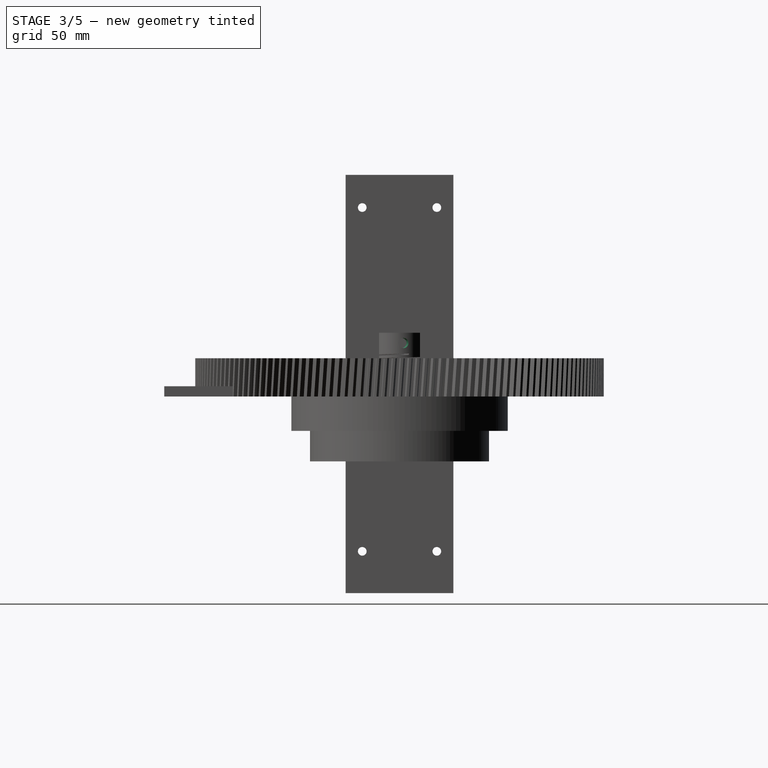
[diagram: stage 3 of 5 — right view after this stage's code; geometry added in this stage tinted green]
FEATURE [App::Part] Part005  label="Screw"
  Group = -> [Screw,Screw001,Screw002,Screw003]
  Origin = -> Origin009
FEATURE [PartDesign::Body] Body004  label="Stator"
  Origin = -> Origin010
FEATURE [PartDesign::Pad] Pad003
  AllowMultiFace = false
  Length = 7.75
  Length2 = 100
  Profile = -> Sketch115
  Refine = true
  Type = 0
FEATURE [PartDesign::Chamfer] Chamfer002
  Angle = 45
  Base = -> Pad003 [Edge8,Edge5,Edge2,Edge1]
  BaseFeature = -> Pad003
  ChamferType = 0
  FlipDirection = false
  Size = 5
  Size2 = 1
  SupportTransform = false
FEATURE [PartDesign::Fillet] Fillet001
  Base = -> Chamfer002 [Edge22,Edge24,Edge23,Edge21,Edge12,Edge2,Edge3,Edge14]
  BaseFeature = -> Chamfer002
  Radius = 2
  SupportTransform = false
FEATURE [PartDesign::Body] Body003  label="Rotor"
  Group = -> [Sketch010,Pad005,Sketch011,Pocket006,Chamfer003]
  Origin = -> Origin004
  Placement = pos=(0,0,2) rot=(0,0,1;0rad)
  Tip = -> Chamfer003
FEATURE [App::Part] Part004  label="Rotor001"
  Group = -> [Body003]
  Origin = -> Origin008
FEATURE [PartDesign::Pocket] Pocket007
  AllowMultiFace = false
  BaseFeature = -> Fillet001
  Length = 5
  Length2 = 100
  Profile = -> Sketch006
  Refine = true
  Type = 1
FEATURE [Sketcher::SketchObject] Sketch008
  MapMode = 5
  Placement = pos=(0,0,6.75) rot=(0,0,1;0rad)
  Support = -> [Pocket008]
  sketch-geometry (1):
    g0: Circle CenterX=0 CenterY=0 CenterZ=0 NormalX=0 NormalY=0 NormalZ=1 AngleXU=0 Radius=11
  constraints (2):
    c: Coincident(g0,g-1)
    c: Radius(g0) = 11
FEATURE [PartDesign::Pad] Pad048
  AllowMultiFace = false
  Length = 9.6
  Length2 = 100
  Profile = -> Sketch116
  Refine = true
  Type = 0
FEATURE [Sketcher::SketchObject] Sketch005
  MapMode = 5
  Placement = pos=(0,0,0) rot=(1,0,0;3.14159rad)
  Support = -> [Chamfer004]
  sketch-geometry (8):
    g0: LineSegment [constr] StartX=-15.5 StartY=15.5 StartZ=0 EndX=15.5 EndY=15.5 EndZ=0
    g1: LineSegment [constr] StartX=15.5 StartY=15.5 StartZ=0 EndX=15.5 EndY=-15.5 EndZ=0
    g2: LineSegment [constr] StartX=15.5 StartY=-15.5 StartZ=0 EndX=-15.5 EndY=-15.5 EndZ=0
    g3: LineSegment [constr] StartX=-15.5 StartY=-15.5 StartZ=0 EndX=-15.5 EndY=15.5 EndZ=0
    g4: Circle CenterX=-15.5 CenterY=15.5 CenterZ=0 NormalX=0 NormalY=0 NormalZ=1 AngleXU=0 Radius=1.22
    g5: Circle CenterX=15.5 CenterY=15.5 CenterZ=0 NormalX=0 NormalY=0 NormalZ=1 AngleXU=0 Radius=1.22
    g6: Circle CenterX=15.5 CenterY=-15.5 CenterZ=0 NormalX=0 NormalY=0 NormalZ=1 AngleXU=0 Radius=1.22
    g7: Circle CenterX=-15.5 CenterY=-15.5 CenterZ=0 NormalX=0 NormalY=0 NormalZ=1 AngleXU=0 Radius=1.22
  constraints (19):
    c: Coincident(g0,g1)
    c: Coincident(g1,g2)
    c: Coincident(g2,g3)
    c: Coincident(g3,g0)
    c: Horizontal(g0)
    c: Horizontal(g2)
    c: Vertical(g1)
    c: Vertical(g3)
    c: Equal(g0,g3)
    c: Symmetric(g0,g1,g-1)
    c: DistanceX(g0,g0) = 31
    c: Coincident(g4,g0)
    c: Coincident(g5,g0)
    c: Coincident(g6,g1)
    c: Coincident(g7,g2)
    c: Equal(g6,g5)
    c: Equal(g5,g4)
    c: Equal(g4,g7)
    c: Radius(g4) = 1.22
FEATURE [PartDesign::Pad] Pad001
  AllowMultiFace = false
  BaseFeature = -> Pad048
  Length = 3.6
  Length2 = 100
  Profile = -> Sketch118
  Refine = true
  Type = 0
FEATURE [PartDesign::Chamfer] Chamfer005
  Angle = 45
  Base = -> Pad001 [Edge13,Edge5,Edge1,Edge2]
  BaseFeature = -> Pad001
  ChamferType = 0
  FlipDirection = false
  Size = 5
  Size2 = 1
  SupportTransform = false
FEATURE [PartDesign::Fillet] Fillet
  Base = -> Chamfer005 [Edge33,Edge28,Edge18,Edge3,Edge2,Edge16,Edge30,Edge25]
  BaseFeature = -> Chamfer005
  Radius = 2
  SupportTransform = false
FEATURE [PartDesign::Body] Body005  label="conector"
  Group = -> [Sketch014,Pad006,Sketch015,Pocket011,Sketch016,Pocket012,Sketch017,Pocket014]
  Origin = -> Origin012
  Tip = -> Pocket014
FEATURE [PartDesign::Pad] Pad007
  AllowMultiFace = false
  Length = 1
  Length2 = 100
  Placement = pos=(0,0,0) rot=(0.57735,0.57735,0.57735;2.0944rad)
  Profile = -> Sketch018
  Refine = true
  Type = 0
FEATURE [Sketcher::SketchObject] Sketch019
  ExternalGeometry = -> [Pad007]
  MapMode = 5
  Placement = pos=(-3e-16,4e-16,1) rot=(0,0,-1;1.5708rad)
  Support = -> [Pad007]
  sketch-geometry (7):
    g0: LineSegment StartX=-5.5 StartY=1 StartZ=0 EndX=-4.5 EndY=1 EndZ=0
    g1: LineSegment StartX=-4.5 StartY=1 StartZ=0 EndX=-4.5 EndY=8 EndZ=0
    g2: LineSegment [constr] StartX=-4.5 StartY=8 StartZ=0 EndX=-5.5 EndY=8 EndZ=0
    g3: LineSegment StartX=-5.5 StartY=8 StartZ=0 EndX=-5.5 EndY=1 EndZ=0
    g4: LineSegment StartX=-5.5 StartY=8 StartZ=0 EndX=-5.25 EndY=8.7 EndZ=0
    g5: LineSegment StartX=-5.25 StartY=8.7 StartZ=0 EndX=-4.75 EndY=8.7 EndZ=0
    g6: LineSegment StartX=-4.75 StartY=8.7 StartZ=0 EndX=-4.5 EndY=8 EndZ=0
  constraints (19):
    c: Coincident(g0,g1)
    c: Coincident(g1,g2)
    c: Coincident(g2,g3)
    c: Coincident(g3,g0)
    c: Horizontal(g0)
    c: Horizontal(g2)
    c: Vertical(g1)
    c: Vertical(g3)
    c: Coincident(g0,g-3)
    c: Coincident(g2,g4)
    c: Coincident(g4,g5)
    c: Horizontal(g5)
    c: Coincident(g5,g6)
    c: Coincident(g6,g1)
    c: DistanceY(g1,g5) = 0.7
    c: DistanceX(g5,g5) = 0.5
    c: Equal(g6,g4)
    c: DistanceX(g0,g0) = 1
    c: DistanceY(g3,g3) = 7
FEATURE [PartDesign::Pad] Pad008
  AllowMultiFace = false
  BaseFeature = -> Pad007
  Length = 1
  Length2 = 100
  Placement = pos=(0,0,0) rot=(0.57735,0.57735,0.57735;2.0944rad)
  Profile = -> Sketch019
  Refine = true
  Reversed = true
  Type = 0
FEATURE [PartDesign::Body] Body002  label="Aluminum front001"
  Group = -> [Sketch115,Pad003,Chamfer002,Fillet001,Sketch006,Pocket007,Sketch007,Pocket008,Sketch008,Pad004,Draft,Sketch009,Pocket010,Sketch020,Pocket015]
  Origin = -> Origin003
  Placement = pos=(0,0,32.35) rot=(0,0,1;0rad)
  Tip = -> Pocket015
FEATURE [App::Part] Part003  label="Aluminum front"
  Group = -> [Body002]
  Origin = -> Origin007
FEATURE [PartDesign::Hole] Hole
  AllowMultiFace = false
  BaseFeature = -> Fillet
  Depth = 25
  DepthType = 0
  Diameter = 3
  DrillPoint = 1
  DrillPointAngle = 118
  HoleCutCountersinkAngle = 90
  HoleCutDepth = 5
  HoleCutDiameter = 5
  HoleCutType = 1
  ModelActualThread = false
  Profile = -> Sketch004
  Refine = true
  Tapered = false
  TaperedAngle = 90
  ThreadAngle = 0
  ThreadClass = 0
  ThreadCutOffInner = 0
  ThreadCutOffOuter = 0
  ThreadDirection = 0
  ThreadFit = 0
  ThreadPitch = 0
  ThreadSize = 0
  ThreadType = 0
  Threaded = false
FEATURE [PartDesign::Body] Body017  label="Aluminium rear001"
  Group = -> [Sketch116,Pad048,Sketch118,Pad001,Chamfer005,Fillet,Sketch004,Hole,Sketch013,Pocket013]
  Origin = -> Origin028
  Tip = -> Pocket013
FEATURE [App::Part] Part001  label="Aluminium rear"
  Group = -> [Body017]
  Origin = -> Origin005
FEATURE [PartDesign::LinearPattern] LinearPattern
  BaseFeature = -> Pad008
  Direction = -> Pad008 [Edge10]
  Length = 10
  Occurrences = 6
  Originals = -> [Pad008]
  Placement = pos=(0,0,0) rot=(0.57735,0.57735,0.57735;2.0944rad)
  Refine = true
  Reversed = true
FEATURE [PartDesign::PolarPattern] PolarPattern
  Angle = 90
  Axis = -> Sketch122 [V_Axis]
  BaseFeature = -> Pocket016
  Occurrences = 2
  Originals = -> [Pocket018,Pocket016]
  Placement = pos=(0,0,0) rot=(1,0,0;1.5708rad)
  Refine = true
FEATURE [PartDesign::Body] Body020  label="Clon1"
  BaseFeature = -> Body023
  Group = -> [Clone]
  Origin = -> Origin032
  Placement = pos=(0,-3,4) rot=(1,0,0;1.5708rad)
  Tip = -> Clone
FEATURE [PartDesign::FeatureBase] Clone002
  BaseFeature = -> Body020
  Placement = pos=(0,-4,4) rot=(1,0,0;1.5708rad)
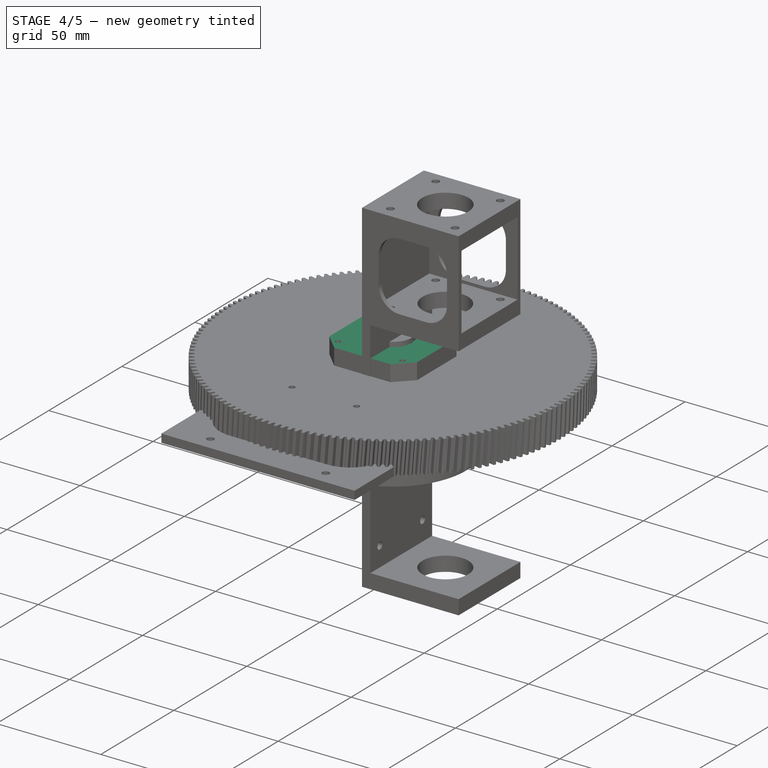
[diagram: stage 4 of 5 — iso view after this stage's code; geometry added in this stage tinted green]
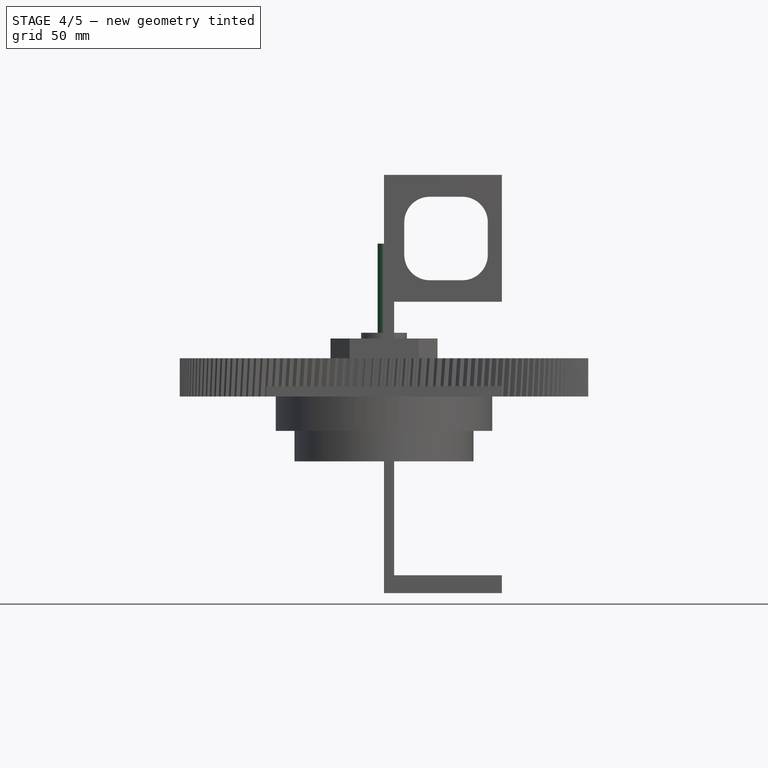
[diagram: stage 4 of 5 — front view after this stage's code; geometry added in this stage tinted green]
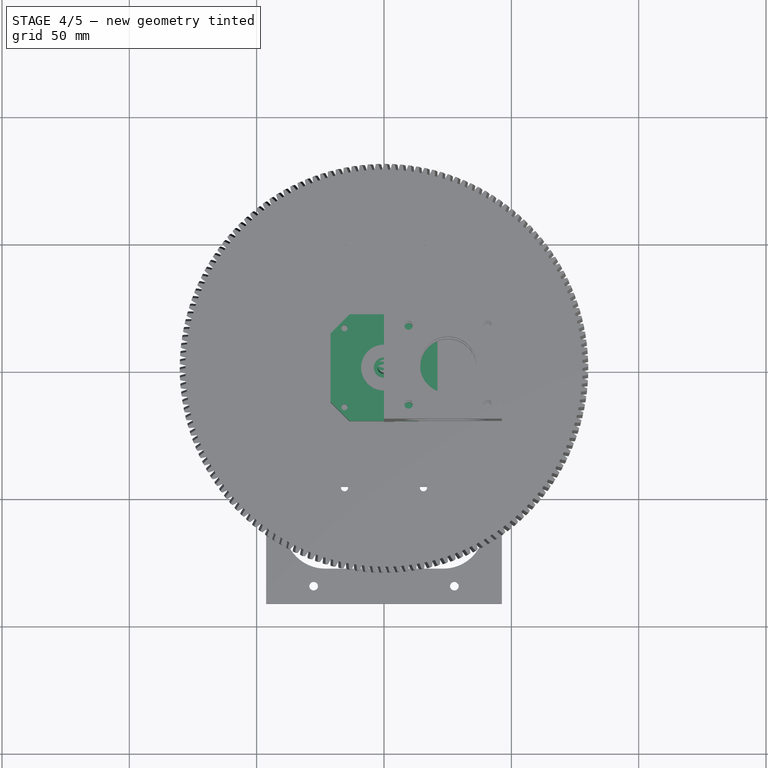
[diagram: stage 4 of 5 — top view after this stage's code; geometry added in this stage tinted green]
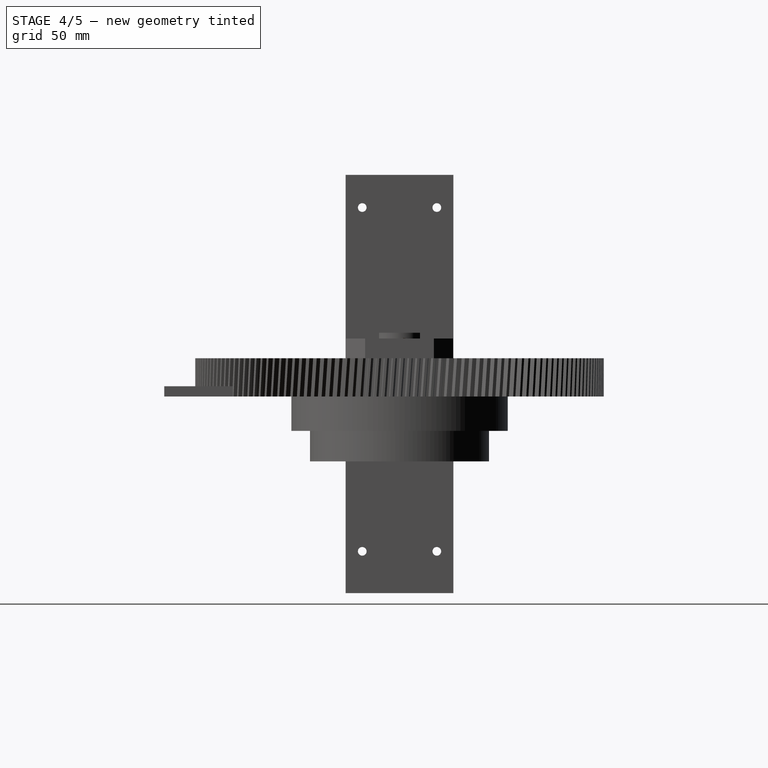
[diagram: stage 4 of 5 — right view after this stage's code; geometry added in this stage tinted green]
FEATURE [Sketcher::SketchObject] Sketch006
  MapMode = 5
  Placement = pos=(0,0,7.75) rot=(0,0,1;0rad)
  Support = -> [Fillet001]
  sketch-geometry (8):
    g0: LineSegment [constr] StartX=-15.5 StartY=15.5 StartZ=0 EndX=15.5 EndY=15.5 EndZ=0
    g1: LineSegment [constr] StartX=15.5 StartY=15.5 StartZ=0 EndX=15.5 EndY=-15.5 EndZ=0
    g2: LineSegment [constr] StartX=15.5 StartY=-15.5 StartZ=0 EndX=-15.5 EndY=-15.5 EndZ=0
    g3: LineSegment [constr] StartX=-15.5 StartY=-15.5 StartZ=0 EndX=-15.5 EndY=15.5 EndZ=0
    g4: Circle CenterX=-15.5 CenterY=15.5 CenterZ=0 NormalX=0 NormalY=0 NormalZ=1 AngleXU=0 Radius=1.225
    g5: Circle CenterX=15.5 CenterY=15.5 CenterZ=0 NormalX=0 NormalY=0 NormalZ=1 AngleXU=0 Radius=1.225
    g6: Circle CenterX=15.5 CenterY=-15.5 CenterZ=0 NormalX=0 NormalY=0 NormalZ=1 AngleXU=0 Radius=1.225
    g7: Circle CenterX=-15.5 CenterY=-15.5 CenterZ=0 NormalX=0 NormalY=0 NormalZ=1 AngleXU=0 Radius=1.225
  constraints (19):
    c: Coincident(g0,g1)
    c: Coincident(g1,g2)
    c: Coincident(g2,g3)
    c: Coincident(g3,g0)
    c: Horizontal(g0)
    c: Horizontal(g2)
    c: Vertical(g1)
    c: Vertical(g3)
    c: Equal(g0,g3)
    c: Symmetric(g0,g1,g-1)
    c: DistanceX(g0,g0) = 31
    c: Coincident(g4,g0)
    c: Coincident(g7,g2)
    c: Coincident(g0,g5)
    c: Coincident(g1,g6)
    c: Equal(g7,g4)
    c: Equal(g4,g5)
    c: Equal(g5,g6)
    c: Radius(g4) = 1.225
FEATURE [PartDesign::Pad] Pad005
  AllowMultiFace = false
  Length = 60
  Length2 = 100
  Profile = -> Sketch010
  Refine = true
  Type = 0
FEATURE [Sketcher::SketchObject] Sketch011
  MapMode = 5
  Placement = pos=(0,0,60) rot=(0,0,1;0rad)
  Support = -> [Pad005]
  sketch-geometry (4):
    g0: LineSegment StartX=2 StartY=2 StartZ=0 EndX=6 EndY=2 EndZ=0
    g1: LineSegment StartX=6 StartY=2 StartZ=0 EndX=6 EndY=-2 EndZ=0
    g2: LineSegment StartX=6 StartY=-2 StartZ=0 EndX=2 EndY=-2 EndZ=0
    g3: LineSegment StartX=2 StartY=-2 StartZ=0 EndX=2 EndY=2 EndZ=0
  constraints (11):
    c: Coincident(g0,g1)
    c: Coincident(g1,g2)
    c: Coincident(g2,g3)
    c: Coincident(g3,g0)
    c: Horizontal(g0)
    c: Horizontal(g2)
    c: Vertical(g1)
    c: Symmetric(g2,g0,g-1)
    c: DistanceX(g-1,g0) = 2
    c: Equal(g0,g3)
    c: DistanceX(g0,g0) = 4
FEATURE [PartDesign::Pocket] Pocket006
  AllowMultiFace = false
  BaseFeature = -> Pad005
  Length = 16
  Length2 = 100
  Profile = -> Sketch011
  Refine = true
  Type = 0
FEATURE [Sketcher::SketchObject] Sketch007
  MapMode = 5
  Placement = pos=(0,0,7.75) rot=(0,0,1;0rad)
  Support = -> [Pocket007]
  sketch-geometry (1):
    g0: Circle CenterX=0 CenterY=0 CenterZ=0 NormalX=0 NormalY=0 NormalZ=1 AngleXU=0 Radius=14
  constraints (2):
    c: Coincident(g0,g-1)
    c: Radius(g0) = 14
FEATURE [PartDesign::Pocket] Pocket008
  AllowMultiFace = false
  BaseFeature = -> Pocket007
  Length = 1
  Length2 = 100
  Profile = -> Sketch007
  Refine = true
  Type = 0
FEATURE [Sketcher::SketchObject] Sketch118
  ExternalGeometry = -> [Pad048]
  MapMode = 5
  Support = -> [XY_Plane027]
  sketch-geometry (4):
    g0: LineSegment StartX=21.15 StartY=8.2 StartZ=0 EndX=25.45 EndY=8.2 EndZ=0
    g1: LineSegment StartX=25.45 StartY=8.2 StartZ=0 EndX=25.45 EndY=-8.2 EndZ=0
    g2: LineSegment StartX=25.45 StartY=-8.2 StartZ=0 EndX=21.15 EndY=-8.2 EndZ=0
    g3: LineSegment StartX=21.15 StartY=-8.2 StartZ=0 EndX=21.15 EndY=8.2 EndZ=0
  constraints (11):
    c: Coincident(g0,g1)
    c: Coincident(g1,g2)
    c: Coincident(g2,g3)
    c: Coincident(g3,g0)
    c: Horizontal(g0)
    c: Horizontal(g2)
    c: Vertical(g3)
    c: PointOnObject(g0,g-3)
    c: Symmetric(g1,g0,g-1)
    c: DistanceX(g0,g0) = 4.3
    c: DistanceY(g1,g1) = 16.4
FEATURE [PartDesign::Pad] Pad004
  AllowMultiFace = false
  BaseFeature = -> Pocket008
  Length = 3
  Length2 = 100
  Profile = -> Sketch008
  Refine = true
  Type = 0
FEATURE [PartDesign::Draft] Draft
  Angle = 10
  Base = -> Pad004 [Face25]
  BaseFeature = -> Pad004
  NeutralPlane = -> Pad004 [Face24]
  SupportTransform = false
FEATURE [Sketcher::SketchObject] Sketch009
  MapMode = 5
  Placement = pos=(0,0,9.75) rot=(0,0,1;0rad)
  Support = -> [Draft]
  sketch-geometry (1):
    g0: Circle CenterX=0 CenterY=0 CenterZ=0 NormalX=0 NormalY=0 NormalZ=1 AngleXU=0 Radius=5
  constraints (2):
    c: Coincident(g0,g-1)
    c: Radius(g0) = 5
FEATURE [PartDesign::Pad] Pad002
  AllowMultiFace = false
  Length = 22.75
  Length2 = 100
  Profile = -> Sketch117
  Refine = true
  Type = 0
FEATURE [PartDesign::Chamfer] Chamfer004
  Angle = 45
  Base = -> Pad002 [Edge8,Edge1,Edge5,Edge2]
  BaseFeature = -> Pad002
  ChamferType = 0
  FlipDirection = false
  Size = 7.5
  Size2 = 1
  SupportTransform = false
FEATURE [Sketcher::SketchObject] Sketch004
  MapMode = 5
  Placement = pos=(0,0,0) rot=(1,0,0;3.14159rad)
  Support = -> [Fillet]
  sketch-geometry (8):
    g0: LineSegment [constr] StartX=-15.5 StartY=15.5 StartZ=0 EndX=15.5 EndY=15.5 EndZ=0
    g1: LineSegment [constr] StartX=15.5 StartY=15.5 StartZ=0 EndX=15.5 EndY=-15.5 EndZ=0
    g2: LineSegment [constr] StartX=15.5 StartY=-15.5 StartZ=0 EndX=-15.5 EndY=-15.5 EndZ=0
    g3: LineSegment [constr] StartX=-15.5 StartY=-15.5 StartZ=0 EndX=-15.5 EndY=15.5 EndZ=0
    g4: Circle CenterX=-15.5 CenterY=15.5 CenterZ=0 NormalX=0 NormalY=0 NormalZ=1 AngleXU=0 Radius=1.225
    g5: Circle CenterX=15.5 CenterY=15.5 CenterZ=0 NormalX=0 NormalY=0 NormalZ=1 AngleXU=0 Radius=1.225
    g6: Circle CenterX=15.5 CenterY=-15.5 CenterZ=0 NormalX=0 NormalY=0 NormalZ=1 AngleXU=0 Radius=1.225
    g7: Circle CenterX=-15.5 CenterY=-15.5 CenterZ=0 NormalX=0 NormalY=0 NormalZ=1 AngleXU=0 Radius=1.225
  constraints (19):
    c: Coincident(g0,g1)
    c: Coincident(g1,g2)
    c: Coincident(g2,g3)
    c: Coincident(g3,g0)
    c: Horizontal(g0)
    c: Horizontal(g2)
    c: Vertical(g1)
    c: Vertical(g3)
    c: Symmetric(g0,g1,g-1)
    c: DistanceX(g0,g0) = 31
    c: Equal(g3,g0)
    c: Coincident(g4,g0)
    c: Coincident(g5,g0)
    c: Coincident(g6,g1)
    c: Coincident(g7,g2)
    c: Equal(g6,g5)
    c: Equal(g5,g4)
    c: Equal(g4,g7)
    c: Radius(g4) = 1.225
FEATURE [PartDesign::Pocket] Pocket009
  AllowMultiFace = false
  BaseFeature = -> Chamfer004
  Length = 5
  Length2 = 100
  Profile = -> Sketch005
  Refine = true
  Type = 1
FEATURE [PartDesign::Body] Body018
  Group = -> [Sketch117,Pad002,Chamfer004,Sketch005,Pocket009,Sketch012,Pocket005]
  Origin = -> Origin002
  Placement = pos=(0,0,9.6) rot=(0,0,1;0rad)
  Tip = -> Pocket005
FEATURE [App::Part] Part002  label="Body"
  Group = -> [Body018,Body004]
  Origin = -> Origin006
FEATURE [PartDesign::Pocket] Pocket010
  AllowMultiFace = false
  BaseFeature = -> Draft
  Length = 8
  Length2 = 100
  Profile = -> Sketch009
  Refine = true
  Type = 1
FEATURE [Sketcher::SketchObject] Sketch020
  MapMode = 5
  Placement = pos=(0,0,0) rot=(1,0,0;3.14159rad)
  Support = -> [Pocket010]
  sketch-geometry (1):
    g0: Circle CenterX=0 CenterY=0 CenterZ=0 NormalX=0 NormalY=0 NormalZ=1 AngleXU=0 Radius=15.35
  constraints (2):
    c: Coincident(g0,g-1)
    c: Radius(g0) = 15.35
FEATURE [PartDesign::Pad] Pad006
  AllowMultiFace = false
  Length = 10
  Length2 = 100
  Placement = pos=(0,0,0) rot=(0.57735,0.57735,0.57735;2.0944rad)
  Profile = -> Sketch014
  Refine = true
  Type = 0
FEATURE [Sketcher::SketchObject] Sketch015
  ExternalGeometry = -> [Pad006]
  MapMode = 5
  Placement = pos=(10,-2.2e-15,2.2e-15) rot=(0.57735,0.57735,0.57735;2.0944rad)
  Support = -> [Pad006]
  sketch-geometry (8):
    g0: LineSegment StartX=-6.5 StartY=4 StartZ=0 EndX=6.5 EndY=4 EndZ=0
    g1: LineSegment StartX=6.5 StartY=4 StartZ=0 EndX=6.5 EndY=1 EndZ=0
    g2: LineSegment StartX=6.5 StartY=1 StartZ=0 EndX=-6.5 EndY=1 EndZ=0
    g3: LineSegment StartX=-6.5 StartY=1 StartZ=0 EndX=-6.5 EndY=4 EndZ=0
    g4: LineSegment [constr] StartX=-6.5 StartY=1 StartZ=0 EndX=-7.5 EndY=1 EndZ=0
    g5: LineSegment [constr] StartX=-6.5 StartY=1 StartZ=0 EndX=-6.5 EndY=0 EndZ=0
    g6: LineSegment [constr] StartX=6.5 StartY=4 StartZ=0 EndX=6.5 EndY=5 EndZ=0
    g7: LineSegment [constr] StartX=6.5 StartY=4 StartZ=0 EndX=7.5 EndY=4 EndZ=0
  constraints (23):
    c: Coincident(g0,g1)
    c: Coincident(g1,g2)
    c: Coincident(g2,g3)
    c: Coincident(g3,g0)
    c: Horizontal(g2)
    c: Vertical(g1)
    c: Vertical(g3)
    c: Symmetric(g0,g0,g-2)
    c: Coincident(g4,g2)
    c: PointOnObject(g4,g-4)
    c: Horizontal(g4)
    c: PointOnObject(g5,g-1)
    c: Vertical(g5)
    c: Coincident(g6,g0)
    c: Coincident(g7,g0)
    c: Horizontal(g7)
    c: Vertical(g6)
    c: PointOnObject(g6,g-5)
    c: Equal(g7,g6)
    c: Equal(g6,g4)
    c: Equal(g4,g5)
    c: DistanceX(g4,g4) = 1
    c: Coincident(g5,g2)
FEATURE [PartDesign::Pocket] Pocket011
  AllowMultiFace = false
  BaseFeature = -> Pad006
  Length = 6
  Length2 = 100
  Placement = pos=(0,0,0) rot=(0.57735,0.57735,0.57735;2.0944rad)
  Profile = -> Sketch015
  Refine = true
  Type = 0
FEATURE [Sketcher::SketchObject] Sketch016
  ExternalGeometry = -> [Pocket011]
  MapMode = 5
  Placement = pos=(10,-2.2e-15,2.2e-15) rot=(0.57735,0.57735,0.57735;2.0944rad)
  Support = -> [Pocket011]
  sketch-geometry (4):
    g0: LineSegment StartX=-4 StartY=5 StartZ=0 EndX=4 EndY=5 EndZ=0
    g1: LineSegment StartX=4 StartY=5 StartZ=0 EndX=4 EndY=4 EndZ=0
    g2: LineSegment StartX=4 StartY=4 StartZ=0 EndX=-4 EndY=4 EndZ=0
    g3: LineSegment StartX=-4 StartY=4 StartZ=0 EndX=-4 EndY=5 EndZ=0
  constraints (11):
    c: Coincident(g0,g1)
    c: Coincident(g1,g2)
    c: Coincident(g2,g3)
    c: Coincident(g3,g0)
    c: Horizontal(g0)
    c: Vertical(g1)
    c: Vertical(g3)
    c: PointOnObject(g0,g-3)
    c: PointOnObject(g1,g-4)
    c: Symmetric(g1,g2,g-2)
    c: DistanceX(g0,g0) = 8
FEATURE [PartDesign::Pocket] Pocket012
  AllowMultiFace = false
  BaseFeature = -> Pocket011
  Length = 4.5
  Length2 = 100
  Placement = pos=(0,0,0) rot=(0.57735,0.57735,0.57735;2.0944rad)
  Profile = -> Sketch016
  Refine = true
  Type = 0
FEATURE [Sketcher::SketchObject] Sketch017
  ExternalGeometry = -> [Pocket012]
  MapMode = 5
  Placement = pos=(-1.4e-15,2.2e-15,5) rot=(0,0,-1;1.5708rad)
  Support = -> [Pocket012]
  sketch-geometry (11):
    g0: LineSegment StartX=-6.49 StartY=8.99 StartZ=0 EndX=-5.01 EndY=8.99 EndZ=0
    g1: LineSegment StartX=-5.01 StartY=8.99 StartZ=0 EndX=-5.01 EndY=4.5 EndZ=0
    g2: LineSegment StartX=-5.01 StartY=4.5 StartZ=0 EndX=-6.49 EndY=4.5 EndZ=0
    g3: LineSegment StartX=-6.49 StartY=4.5 StartZ=0 EndX=-6.49 EndY=8.99 EndZ=0
    g4: LineSegment StartX=5.01 StartY=8.99 StartZ=0 EndX=6.49 EndY=8.99 EndZ=0
    g5: LineSegment StartX=6.49 StartY=8.99 StartZ=0 EndX=6.49 EndY=4.5 EndZ=0
    g6: LineSegment StartX=6.49 StartY=4.5 StartZ=0 EndX=5.01 EndY=4.5 EndZ=0
    g7: LineSegment StartX=5.01 StartY=4.5 StartZ=0 EndX=5.01 EndY=8.99 EndZ=0
    g8: LineSegment [constr] StartX=-7.5 StartY=8.99 StartZ=0 EndX=-6.49 EndY=8.99 EndZ=0
    g9: LineSegment [constr] StartX=-6.49 StartY=10 StartZ=0 EndX=-6.49 EndY=8.99 EndZ=0
    g10: LineSegment [constr] StartX=-5.01 StartY=8.99 StartZ=0 EndX=-4 EndY=8.99 EndZ=0
  constraints (32):
    c: Coincident(g0,g1)
    c: Coincident(g1,g2)
    c: Coincident(g2,g3)
    c: Coincident(g3,g0)
    c: Horizontal(g0)
    c: Horizontal(g2)
    c: Vertical(g1)
    c: Vertical(g3)
    c: Coincident(g4,g5)
    c: Coincident(g5,g6)
    c: Coincident(g6,g7)
    c: Coincident(g7,g4)
    c: Horizontal(g4)
    c: Horizontal(g6)
    c: Vertical(g5)
    c: Vertical(g7)
    c: DistanceX(g4,g4) = 1.48
    c: Equal(g0,g4)
    c: Equal(g7,g1)
    c: PointOnObject(g8,g-4)
    c: Coincident(g8,g0)
    c: Horizontal(g8)
    c: PointOnObject(g9,g-5)
    c: Coincident(g9,g0)
    c: Vertical(g9)
    c: Coincident(g10,g0)
    c: PointOnObject(g10,g-3)
    c: Horizontal(g10)
    c: Symmetric(g4,g0,g-2)
    c: Equal(g10,g9)
    c: Equal(g9,g8)
    c: DistanceY(g3,g3) = 4.49
FEATURE [PartDesign::Pocket] Pocket014
  AllowMultiFace = false
  BaseFeature = -> Pocket012
  Length = 2
  Length2 = 100
  Placement = pos=(0,0,0) rot=(0.57735,0.57735,0.57735;2.0944rad)
  Profile = -> Sketch017
  Refine = true
  Type = 0
FEATURE [PartDesign::Pocket] Pocket015
  AllowMultiFace = false
  BaseFeature = -> Pocket010
  Length = 5
  Length2 = 100
  Profile = -> Sketch020
  Refine = true
  Type = 0
FEATURE [Sketcher::SketchObject] Sketch013
  ExternalGeometry = -> [Hole]
  MapMode = 5
  Placement = pos=(21.15,0,0) rot=(0.57735,0.57735,0.57735;2.0944rad)
  Support = -> [Hole]
  sketch-geometry (4):
    g0: LineSegment StartX=-8.2 StartY=3.6 StartZ=0 EndX=8.2 EndY=3.6 EndZ=0
    g1: LineSegment StartX=8.2 StartY=3.6 StartZ=0 EndX=8.2 EndY=9.6 EndZ=0
    g2: LineSegment StartX=8.2 StartY=9.6 StartZ=0 EndX=-8.2 EndY=9.6 EndZ=0
    g3: LineSegment StartX=-8.2 StartY=9.6 StartZ=0 EndX=-8.2 EndY=3.6 EndZ=0
  constraints (10):
    c: Coincident(g0,g1)
    c: Coincident(g1,g2)
    c: Coincident(g2,g3)
    c: Coincident(g3,g0)
    c: Horizontal(g0)
    c: Vertical(g1)
    c: Vertical(g3)
    c: Coincident(g0,g-3)
    c: PointOnObject(g1,g-5)
    c: Symmetric(g2,g1,g-2)
FEATURE [PartDesign::Pocket] Pocket013
  AllowMultiFace = false
  BaseFeature = -> Hole
  Length = 4
  Length2 = 100
  Profile = -> Sketch013
  Refine = true
  Type = 0
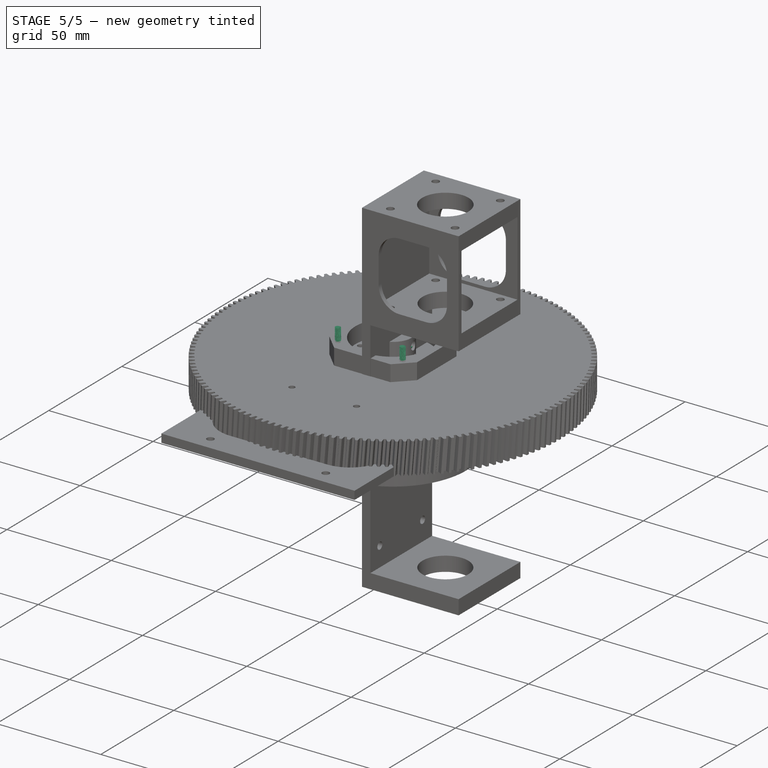
[diagram: stage 5 of 5 — iso view after this stage's code; geometry added in this stage tinted green]
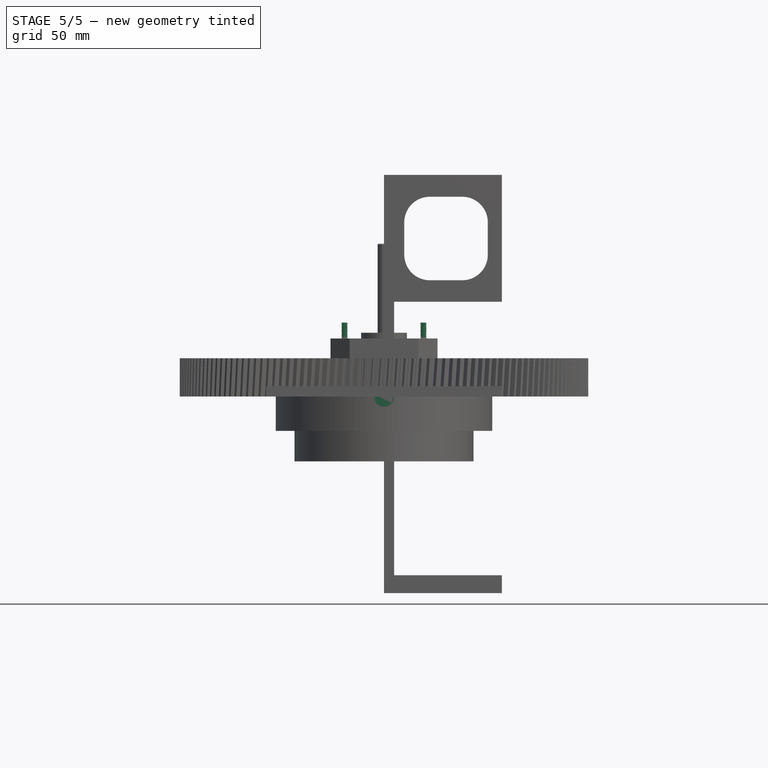
[diagram: stage 5 of 5 — front view after this stage's code; geometry added in this stage tinted green]
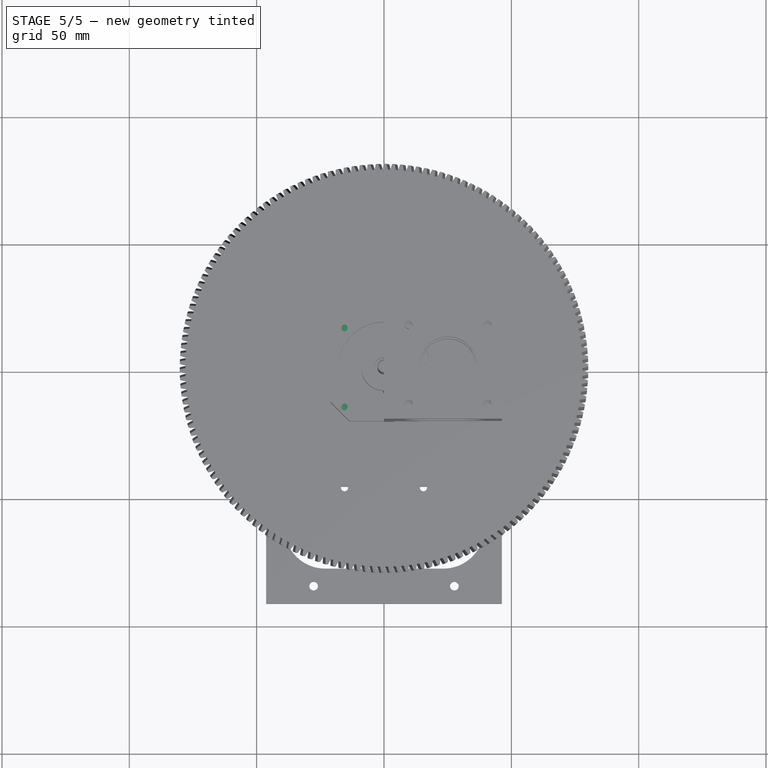
[diagram: stage 5 of 5 — top view after this stage's code; geometry added in this stage tinted green]
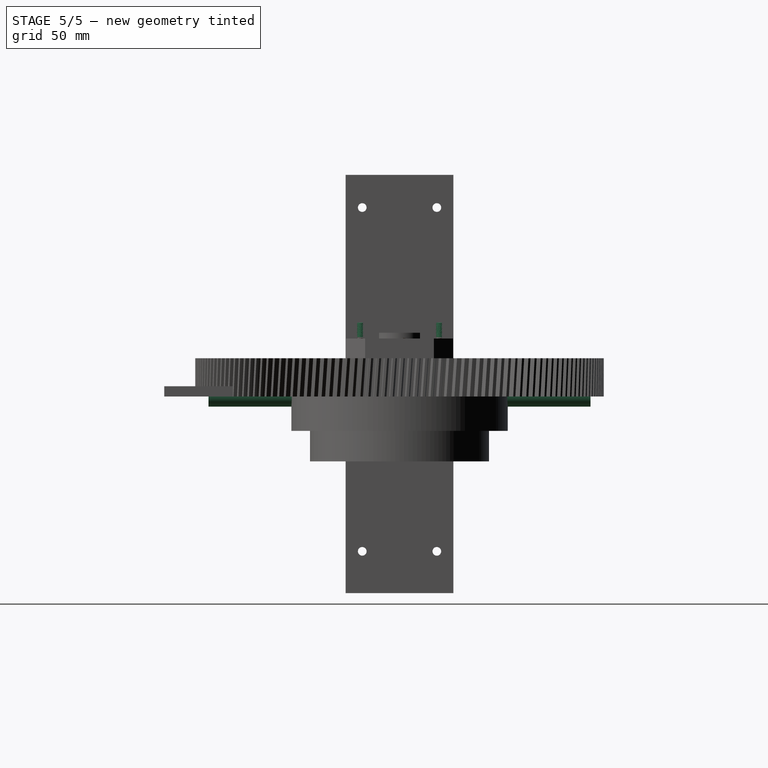
[diagram: stage 5 of 5 — right view after this stage's code; geometry added in this stage tinted green]
FEATURE [Part::FeaturePython] WormGear  # WARN: FeaturePython — macro-defined, semantics opaque (R4)
  Placement = pos=(30.0569,18,-26.8984) rot=(0.255595,0.68362,-0.68362;2.64112rad)
  beta = 4.08562
  diameter = 14
  height = 20
  module = 1
  pressure_angle = 14.5
  teeth = 1
FEATURE [PartDesign::FeatureBase] BaseFeature
  BaseFeature = -> WormGear
FEATURE [Sketcher::SketchObject] Sketch
  MapMode = 5
  Placement = pos=(0,0,-1.2e-15) rot=(1,0,0;3.14159rad)
  Support = -> [BaseFeature]
  sketch-geometry (1):
    g0: Circle CenterX=0 CenterY=0 CenterZ=0 NormalX=0 NormalY=0 NormalZ=1 AngleXU=0 Radius=4.2
  constraints (2):
    c: Coincident(g0,g-1)
    c: Radius(g0) = 4.2
FEATURE [PartDesign::Pocket] Pocket
  BaseFeature = -> BaseFeature
  Length = 40
  Length2 = 100
  Profile = -> Sketch
  Type = 0
FEATURE [Sketcher::SketchObject] Sketch108
  MapMode = 5
  Placement = pos=(0,0,0) rot=(1,0,0;1.5708rad)
  Support = -> [XZ_Plane023]
  sketch-geometry (1):
    g0: Circle CenterX=0 CenterY=0 CenterZ=0 NormalX=0 NormalY=0 NormalZ=1 AngleXU=0 Radius=4
  constraints (2):
    c: Coincident(g0,g-1)
    c: Radius(g0) = 4
FEATURE [PartDesign::Pad] Pad045
  Length = 150
  Length2 = 100
  Midplane = true
  Placement = pos=(0,0,0) rot=(1,0,0;1.5708rad)
  Profile = -> Sketch108
  Type = 0
FEATURE [PartDesign::Body] Body013  label="worm rod"
  Group = -> [Sketch108,Pad045]
  Origin = -> Origin023
  Placement = pos=(68,0,-2) rot=(0,0,1;0rad)
  Tip = -> Pad045
FEATURE [Sketcher::SketchObject] Sketch112
  MapMode = 5
  Placement = pos=(0,0,0) rot=(1,0,0;1.5708rad)
  sketch-geometry (12):
    g0: LineSegment StartX=4 StartY=-3.5 StartZ=0 EndX=6.5 EndY=-3.5 EndZ=0
    g1: LineSegment StartX=11 StartY=-3.5 StartZ=0 EndX=11 EndY=3.5 EndZ=0
    g2: LineSegment StartX=11 StartY=3.5 StartZ=0 EndX=9.25 EndY=3.5 EndZ=0
    g3: LineSegment StartX=4 StartY=3.5 StartZ=0 EndX=4 EndY=-3.5 EndZ=0
    g4: LineSegment StartX=6.5 StartY=3.5 StartZ=0 EndX=6.75 EndY=3.25 EndZ=0
    g5: LineSegment StartX=6.75 StartY=3.25 StartZ=0 EndX=9 EndY=3.25 EndZ=0
    g6: LineSegment StartX=9 StartY=3.25 StartZ=0 EndX=9.25 EndY=3.5 EndZ=0
    g7: LineSegment StartX=6.5 StartY=-3.5 StartZ=0 EndX=6.75 EndY=-3.25 EndZ=0
    g8: LineSegment StartX=6.75 StartY=-3.25 StartZ=0 EndX=9 EndY=-3.25 EndZ=0
    g9: LineSegment StartX=9 StartY=-3.25 StartZ=0 EndX=9.25 EndY=-3.5 EndZ=0
    g10: LineSegment StartX=6.5 StartY=3.5 StartZ=0 EndX=4 EndY=3.5 EndZ=0
    g11: LineSegment StartX=9.25 StartY=-3.5 StartZ=0 EndX=11 EndY=-3.5 EndZ=0
  constraints (34):
    c: Coincident(g11,g1)
    c: Coincident(g1,g2)
    c: Coincident(g10,g3)
    c: Coincident(g3,g0)
    c: Horizontal(g0)
    c: Horizontal(g2)
    c: Vertical(g1)
    c: Vertical(g3)
    c: DistanceY(g1) = 7
    c: DistanceX(g0) = 4
    c: DistanceX(g11) = 11
    c: Coincident(g4,g5)
    c: Horizontal(g5)
    c: Coincident(g5,g6)
    c: Coincident(g7,g8)
    c: Horizontal(g8)
    c: Coincident(g8,g9)
    c: Coincident(g2,g6)
    c: Coincident(g10,g4)
    c: Tangent(g2,g10)
    c: Coincident(g0,g7)
    c: Coincident(g11,g9)
    c: Tangent(g0,g11)
    c: Equal(g4,g6)
    c: Equal(g6,g7)
    c: Angle(g10,g4) = 2.35619
    c: DistanceX(g2) = -1.75
    c: DistanceX(g10) = -2.5
    c: Equal(g0,g10)
    c: Equal(g11,g2)
    c: Equal(g9,g7)
    c: Parallel(g9,g4)
    c: DistanceY(g5,g1) = 0.25
    c: Symmetric(g0,g3,g-1)
FEATURE [PartDesign::Revolution] Revolution
  AllowMultiFace = false
  Angle = 360
  Axis = (0,2e-16,1)
  Base = (0,0,0)
  Placement = pos=(0,0,0) rot=(1,0,0;1.5708rad)
  Profile = -> Sketch112
  ReferenceAxis = -> Sketch112 [V_Axis]
  Reversed = true
FEATURE [PartDesign::Chamfer] Chamfer
  Angle = 45
  Base = -> Revolution [Edge1,Edge3]
  BaseFeature = -> Revolution
  ChamferType = 0
  FlipDirection = false
  Placement = pos=(0,0,0) rot=(1,0,0;1.5708rad)
  Size = 0.25
  Size2 = 1
  SupportTransform = false
FEATURE [PartDesign::Body] Body015  label="worm rod bearing"
  Group = -> [Revolution,Sketch112,Chamfer]
  Origin = -> Origin025
  Placement = pos=(68,-42,-2) rot=(1,0,0;1.5708rad)
  Tip = -> Chamfer
FEATURE [Sketcher::SketchObject] Sketch113
  MapMode = 5
  Placement = pos=(0,0,0) rot=(1,0,0;1.5708rad)
  sketch-geometry (12):
    g0: LineSegment StartX=4 StartY=-3.5 StartZ=0 EndX=6.5 EndY=-3.5 EndZ=0
    g1: LineSegment StartX=11 StartY=-3.5 StartZ=0 EndX=11 EndY=3.5 EndZ=0
    g2: LineSegment StartX=11 StartY=3.5 StartZ=0 EndX=9.25 EndY=3.5 EndZ=0
    g3: LineSegment StartX=4 StartY=3.5 StartZ=0 EndX=4 EndY=-3.5 EndZ=0
    g4: LineSegment StartX=6.5 StartY=3.5 StartZ=0 EndX=6.75 EndY=3.25 EndZ=0
    g5: LineSegment StartX=6.75 StartY=3.25 StartZ=0 EndX=9 EndY=3.25 EndZ=0
    g6: LineSegment StartX=9 StartY=3.25 StartZ=0 EndX=9.25 EndY=3.5 EndZ=0
    g7: LineSegment StartX=6.5 StartY=-3.5 StartZ=0 EndX=6.75 EndY=-3.25 EndZ=0
    g8: LineSegment StartX=6.75 StartY=-3.25 StartZ=0 EndX=9 EndY=-3.25 EndZ=0
    g9: LineSegment StartX=9 StartY=-3.25 StartZ=0 EndX=9.25 EndY=-3.5 EndZ=0
    g10: LineSegment StartX=6.5 StartY=3.5 StartZ=0 EndX=4 EndY=3.5 EndZ=0
    g11: LineSegment StartX=9.25 StartY=-3.5 StartZ=0 EndX=11 EndY=-3.5 EndZ=0
  constraints (34):
    c: Coincident(g11,g1)
    c: Coincident(g1,g2)
    c: Coincident(g10,g3)
    c: Coincident(g3,g0)
    c: Horizontal(g0)
    c: Horizontal(g2)
    c: Vertical(g1)
    c: Vertical(g3)
    c: DistanceY(g1) = 7
    c: DistanceX(g0) = 4
    c: DistanceX(g11) = 11
    c: Coincident(g4,g5)
    c: Horizontal(g5)
    c: Coincident(g5,g6)
    c: Coincident(g7,g8)
    c: Horizontal(g8)
    c: Coincident(g8,g9)
    c: Coincident(g2,g6)
    c: Coincident(g10,g4)
    c: Tangent(g2,g10)
    c: Coincident(g0,g7)
    c: Coincident(g11,g9)
    c: Tangent(g0,g11)
    c: Equal(g4,g6)
    c: Equal(g6,g7)
    c: Angle(g10,g4) = 2.35619
    c: DistanceX(g2) = -1.75
    c: DistanceX(g10) = -2.5
    c: Equal(g0,g10)
    c: Equal(g11,g2)
    c: Equal(g9,g7)
    c: Parallel(g9,g4)
    c: DistanceY(g5,g1) = 0.25
    c: Symmetric(g0,g3,g-1)
FEATURE [PartDesign::Revolution] Revolution001
  AllowMultiFace = false
  Angle = 360
  Axis = (0,2e-16,1)
  Base = (0,0,0)
  Placement = pos=(0,0,0) rot=(1,0,0;1.5708rad)
  Profile = -> Sketch113
  ReferenceAxis = -> Sketch113 [V_Axis]
  Reversed = true
FEATURE [PartDesign::Chamfer] Chamfer001
  Angle = 45
  Base = -> Revolution001 [Edge1,Edge3]
  BaseFeature = -> Revolution001
  ChamferType = 0
  FlipDirection = false
  Placement = pos=(0,0,0) rot=(1,0,0;1.5708rad)
  Size = 0.25
  Size2 = 1
  SupportTransform = false
FEATURE [PartDesign::Body] Body016  label="worm rod bearing 2"
  Group = -> [Revolution001,Sketch113,Chamfer001]
  Origin = -> Origin026
  Placement = pos=(68,72,-2) rot=(1,0,0;1.5708rad)
  Tip = -> Chamfer001
FEATURE [Sketcher::SketchObject] Sketch115
  MapMode = 5
  Support = -> [XY_Plane003]
  sketch-geometry (4):
    g0: LineSegment StartX=-21.15 StartY=21.15 StartZ=0 EndX=21.15 EndY=21.15 EndZ=0
    g1: LineSegment StartX=21.15 StartY=21.15 StartZ=0 EndX=21.15 EndY=-21.15 EndZ=0
    g2: LineSegment StartX=21.15 StartY=-21.15 StartZ=0 EndX=-21.15 EndY=-21.15 EndZ=0
    g3: LineSegment StartX=-21.15 StartY=-21.15 StartZ=0 EndX=-21.15 EndY=21.15 EndZ=0
  constraints (11):
    c: Coincident(g0,g1)
    c: Coincident(g1,g2)
    c: Coincident(g2,g3)
    c: Coincident(g3,g0)
    c: Horizontal(g0)
    c: Horizontal(g2)
    c: Vertical(g1)
    c: Vertical(g3)
    c: Symmetric(g0,g1,g-1)
    c: DistanceX(g0,g0) = 42.3
    c: Equal(g0,g3)
FEATURE [Sketcher::SketchObject] Sketch116
  MapMode = 5
  Support = -> [XY_Plane027]
  sketch-geometry (4):
    g0: LineSegment StartX=-21.15 StartY=21.15 StartZ=0 EndX=21.15 EndY=21.15 EndZ=0
    g1: LineSegment StartX=21.15 StartY=21.15 StartZ=0 EndX=21.15 EndY=-21.15 EndZ=0
    g2: LineSegment StartX=21.15 StartY=-21.15 StartZ=0 EndX=-21.15 EndY=-21.15 EndZ=0
    g3: LineSegment StartX=-21.15 StartY=-21.15 StartZ=0 EndX=-21.15 EndY=21.15 EndZ=0
  constraints (11):
    c: Coincident(g0,g1)
    c: Coincident(g1,g2)
    c: Coincident(g2,g3)
    c: Coincident(g3,g0)
    c: Horizontal(g0)
    c: Horizontal(g2)
    c: Vertical(g1)
    c: Vertical(g3)
    c: Symmetric(g0,g1,g-1)
    c: DistanceX(g0,g0) = 42.3
    c: Equal(g0,g3)
FEATURE [Sketcher::SketchObject] Sketch117
  MapMode = 5
  Support = -> [XY_Plane002]
  sketch-geometry (4):
    g0: LineSegment StartX=-21 StartY=21 StartZ=0 EndX=21 EndY=21 EndZ=0
    g1: LineSegment StartX=21 StartY=21 StartZ=0 EndX=21 EndY=-21 EndZ=0
    g2: LineSegment StartX=21 StartY=-21 StartZ=0 EndX=-21 EndY=-21 EndZ=0
    g3: LineSegment StartX=-21 StartY=-21 StartZ=0 EndX=-21 EndY=21 EndZ=0
  constraints (11):
    c: Coincident(g0,g1)
    c: Coincident(g1,g2)
    c: Coincident(g2,g3)
    c: Coincident(g3,g0)
    c: Horizontal(g0)
    c: Horizontal(g2)
    c: Vertical(g1)
    c: Vertical(g3)
    c: DistanceX(g0,g0) = 42
    c: Symmetric(g0,g1,g-1)
    c: Equal(g0,g3)
FEATURE [Sketcher::SketchObject] Sketch010
  MapMode = 5
  Support = -> [XY_Plane004]
  sketch-geometry (1):
    g0: Circle CenterX=0 CenterY=0 CenterZ=0 NormalX=0 NormalY=0 NormalZ=1 AngleXU=0 Radius=2.5
  constraints (2):
    c: Coincident(g0,g-1)
    c: Radius(g0) = 2.5
FEATURE [Sketcher::SketchObject] Sketch018
  MapMode = 5
  Placement = pos=(0,0,0) rot=(0.57735,0.57735,0.57735;2.0944rad)
  Support = -> [YZ_Plane013]
  sketch-geometry (4):
    g0: LineSegment StartX=-5.5 StartY=1 StartZ=0 EndX=5.5 EndY=1 EndZ=0
    g1: LineSegment StartX=5.5 StartY=1 StartZ=0 EndX=5.5 EndY=0 EndZ=0
    g2: LineSegment StartX=5.5 StartY=0 StartZ=0 EndX=-5.5 EndY=0 EndZ=0
    g3: LineSegment StartX=-5.5 StartY=0 StartZ=0 EndX=-5.5 EndY=1 EndZ=0
  constraints (11):
    c: Coincident(g0,g1)
    c: Coincident(g1,g2)
    c: Coincident(g2,g3)
    c: Coincident(g3,g0)
    c: Horizontal(g0)
    c: Vertical(g1)
    c: Vertical(g3)
    c: PointOnObject(g1,g-1)
    c: DistanceY(g3,g3) = 1
    c: DistanceX(g2,g2) = 11
    c: Symmetric(g1,g2,g-2)
FEATURE [Sketcher::SketchObject] Sketch014
  MapMode = 5
  Placement = pos=(0,0,0) rot=(0.57735,0.57735,0.57735;2.0944rad)
  Support = -> [YZ_Plane012]
  sketch-geometry (4):
    g0: LineSegment StartX=-7.5 StartY=0 StartZ=0 EndX=7.5 EndY=0 EndZ=0
    g1: LineSegment StartX=7.5 StartY=0 StartZ=0 EndX=7.5 EndY=5 EndZ=0
    g2: LineSegment StartX=7.5 StartY=5 StartZ=0 EndX=-7.5 EndY=5 EndZ=0
    g3: LineSegment StartX=-7.5 StartY=5 StartZ=0 EndX=-7.5 EndY=0 EndZ=0
  constraints (11):
    c: Coincident(g0,g1)
    c: Coincident(g1,g2)
    c: Coincident(g2,g3)
    c: Coincident(g3,g0)
    c: Horizontal(g0)
    c: Horizontal(g2)
    c: Vertical(g1)
    c: Vertical(g3)
    c: Symmetric(g0,g0,g-1)
    c: DistanceX(g0,g0) = 15
    c: DistanceY(g3,g3) = 5
FEATURE [Part::FeaturePython] Screw  label="M2.5x25-Screw"  # Fasteners workbench fastener (typed FeaturePython)
  Placement = pos=(15.5,15.5,4) rot=(0,1,0;3.14159rad)
  diameter = 3
  invert = true
  length = 10
  matchOuter = true
  offset = 1
  thread = true
  type = 16
FEATURE [Part::FeaturePython] Screw001  label="M2.5x25-Screw006"  # Fasteners workbench fastener (typed FeaturePython)
  Placement = pos=(-15.5,-15.5,4) rot=(0,1,0;3.14159rad)
  diameter = 3
  invert = true
  length = 10
  matchOuter = true
  offset = 1
  thread = true
  type = 16
FEATURE [Part::FeaturePython] Screw003  label="M2.5x25-Screw007"  # Fasteners workbench fastener (typed FeaturePython)
  Placement = pos=(-15.5,15.5,4) rot=(0,1,0;3.14159rad)
  diameter = 3
  invert = true
  length = 10
  matchOuter = true
  offset = 1
  thread = true
  type = 16
FEATURE [Part::FeaturePython] Screw002  label="M2.5x25-Screw005"  # Fasteners workbench fastener (typed FeaturePython)
  Placement = pos=(15.5,-15.5,4) rot=(0,1,0;3.14159rad)
  diameter = 3
  invert = true
  length = 10
  matchOuter = true
  offset = 1
  thread = true
  type = 16
FEATURE [PartDesign::Chamfer] Chamfer003
  Angle = 45
  Base = -> Pocket006 [Edge3,Edge5,Edge9]
  BaseFeature = -> Pocket006
  ChamferType = 0
  FlipDirection = false
  Size = 0.3
  Size2 = 1
  SupportTransform = false
FEATURE [Sketcher::SketchObject] Sketch012
  MapMode = 5
  Placement = pos=(0,0,22.75) rot=(0,0,1;0rad)
  Support = -> [Pocket009]
  sketch-geometry (1):
    g0: Circle CenterX=0 CenterY=0 CenterZ=0 NormalX=0 NormalY=0 NormalZ=1 AngleXU=0 Radius=18
  constraints (2):
    c: Coincident(g0,g-1)
    c: Radius(g0) = 18
FEATURE [PartDesign::Pocket] Pocket005
  AllowMultiFace = false
  BaseFeature = -> Pocket009
  Length = 5
  Length2 = 100
  Profile = -> Sketch012
  Refine = true
  Type = 1
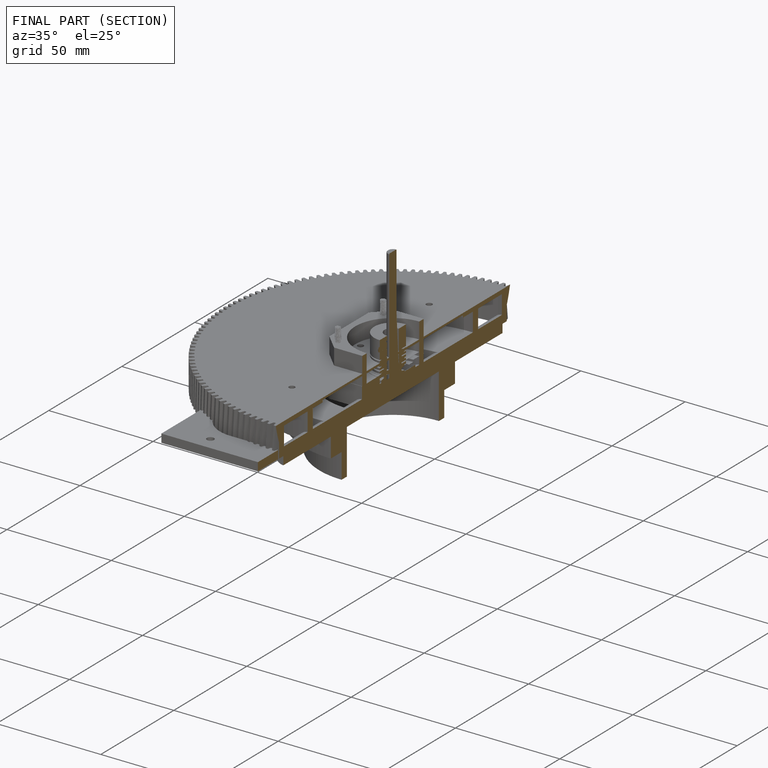
[diagram: finished part — half-section view (interior)]
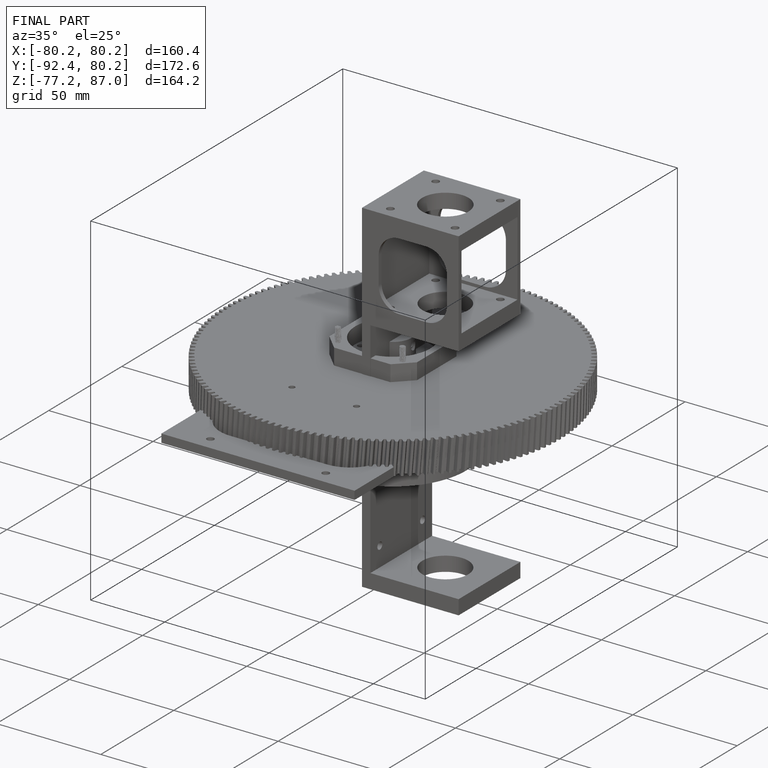
[diagram: finished part — iso view with bounding-box wireframe]
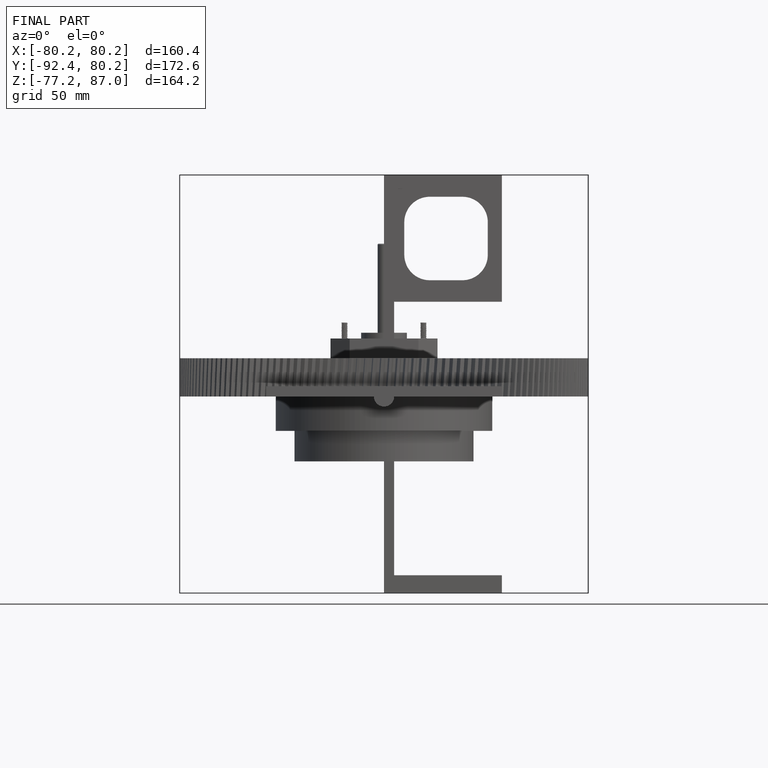
[diagram: finished part — front view with bounding-box wireframe]
